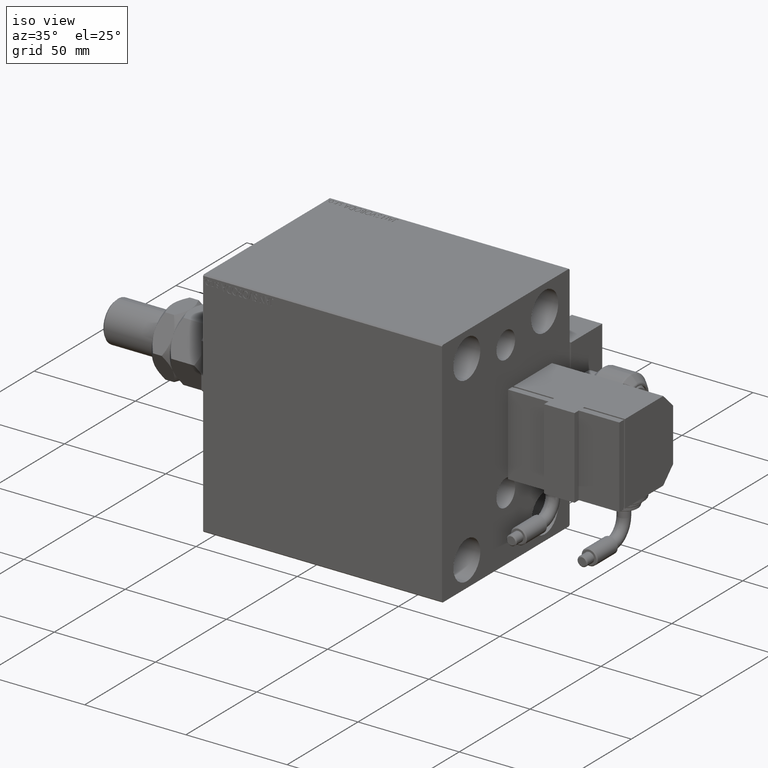
[diagram: clean part render]
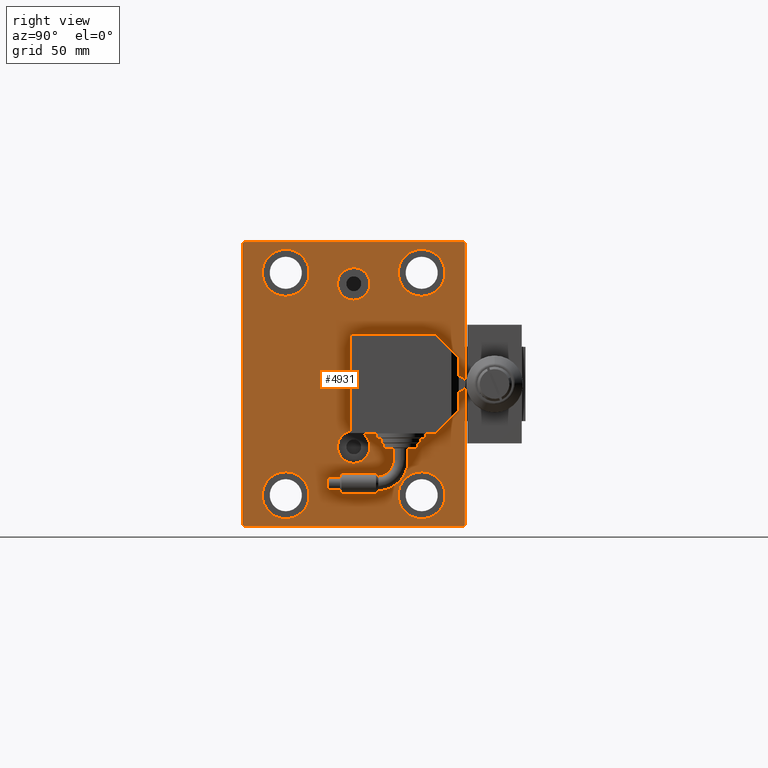
[diagram: tour spotlight — one face highlighted and labeled with its STEP entity id]
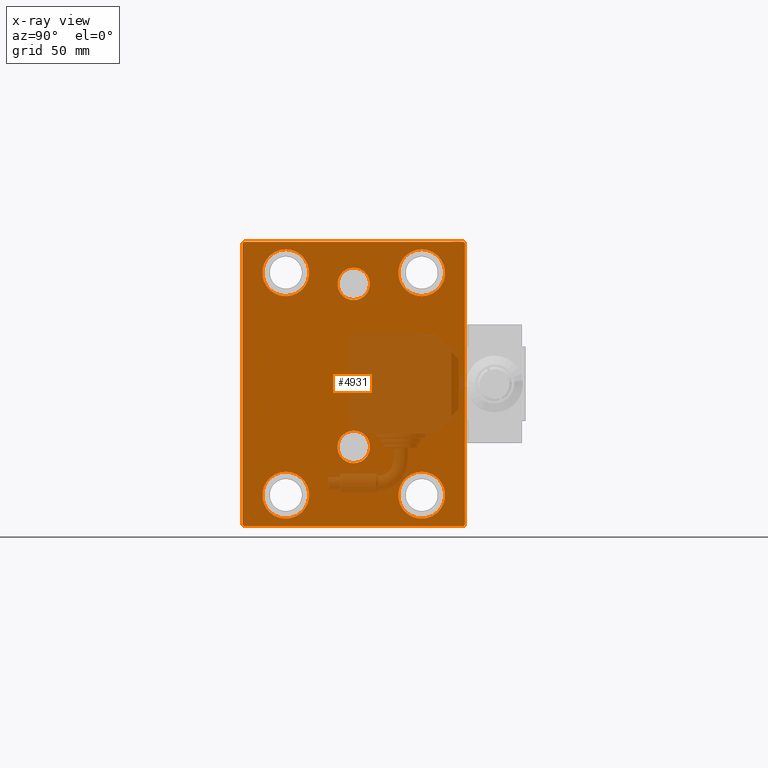
[diagram: x-ray of the same camera — body ghosted, this tour face saturated]
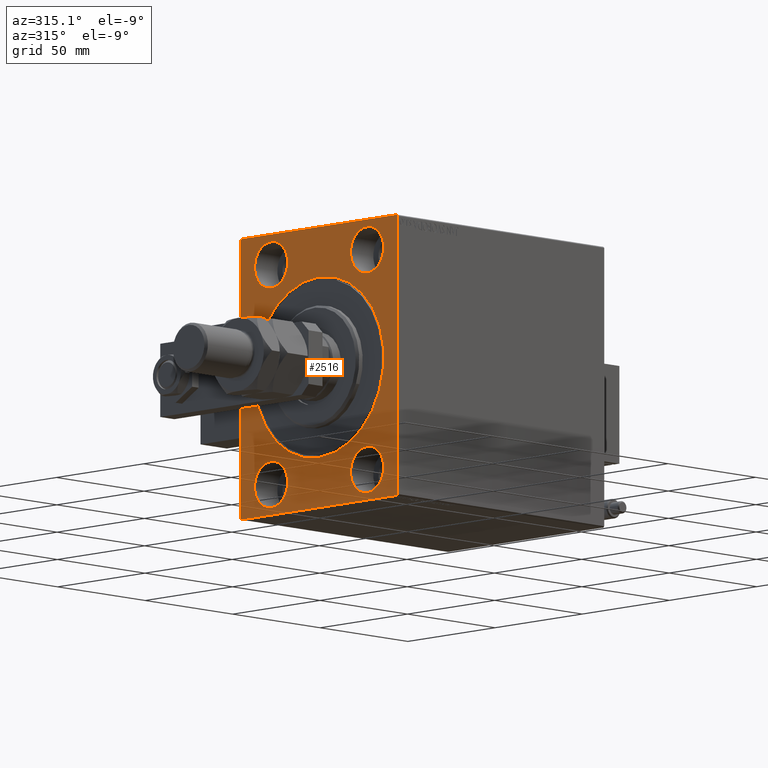
[diagram: tour spotlight — one face highlighted and labeled with its STEP entity id]
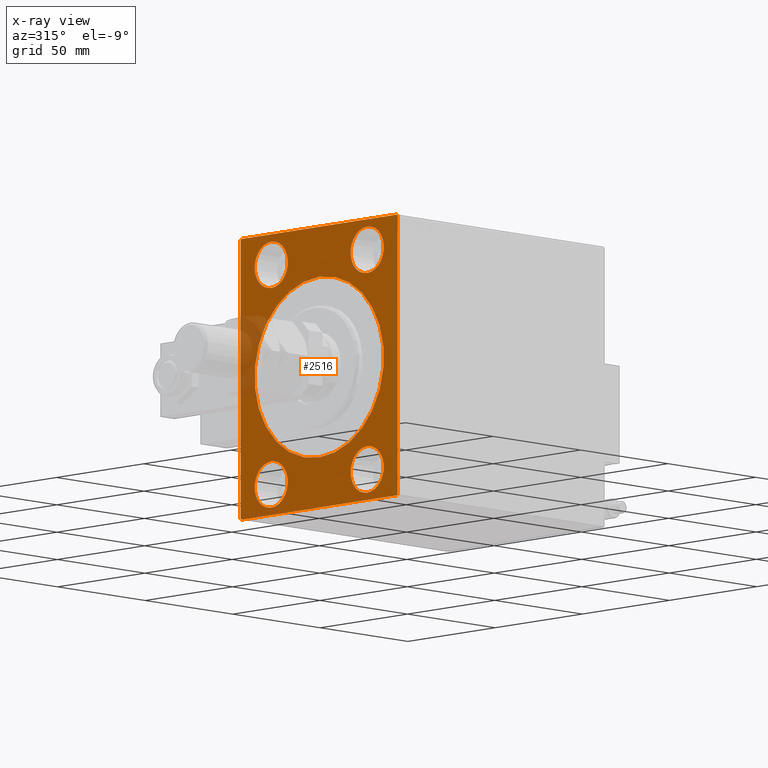
[diagram: x-ray of the same camera — body ghosted, this tour face saturated]
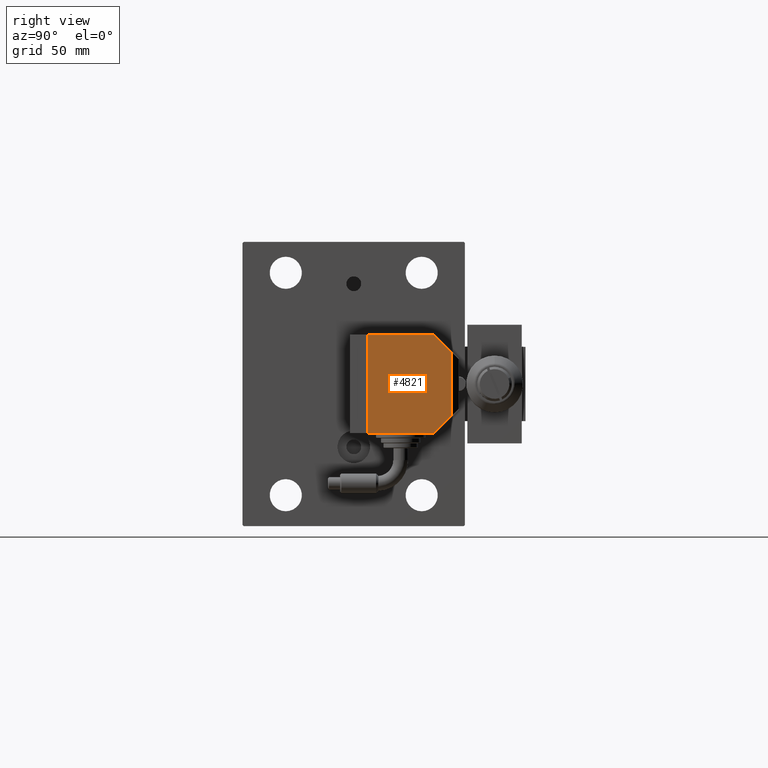
[diagram: tour spotlight — one face highlighted and labeled with its STEP entity id]
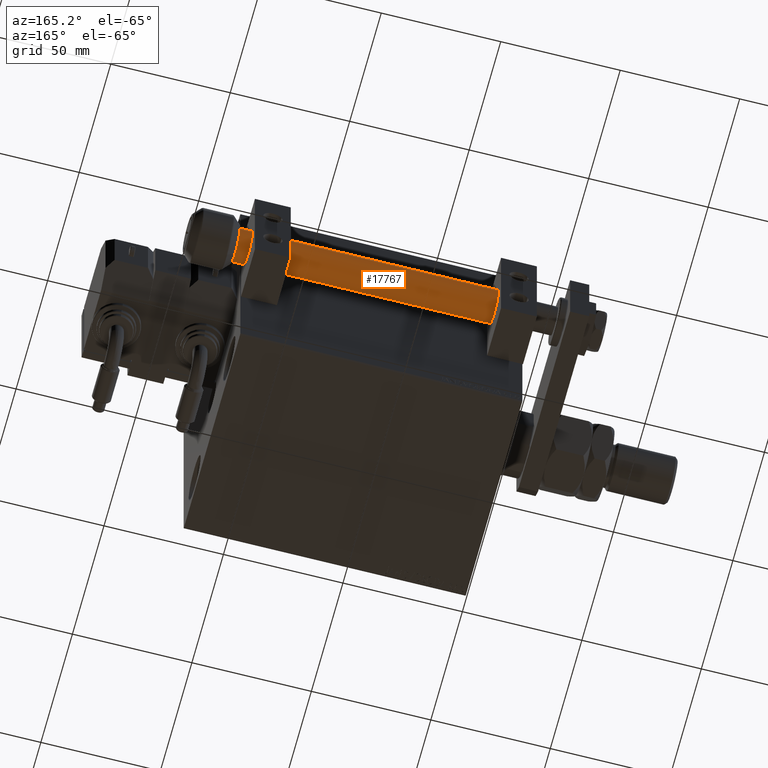
[diagram: tour spotlight — one face highlighted and labeled with its STEP entity id]
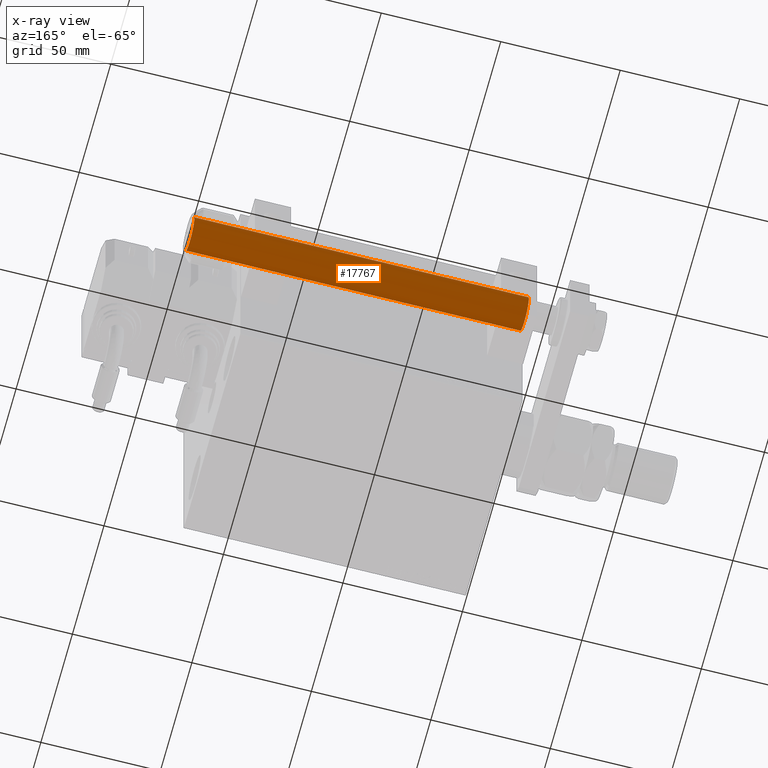
[diagram: x-ray of the same camera — body ghosted, this tour face saturated]
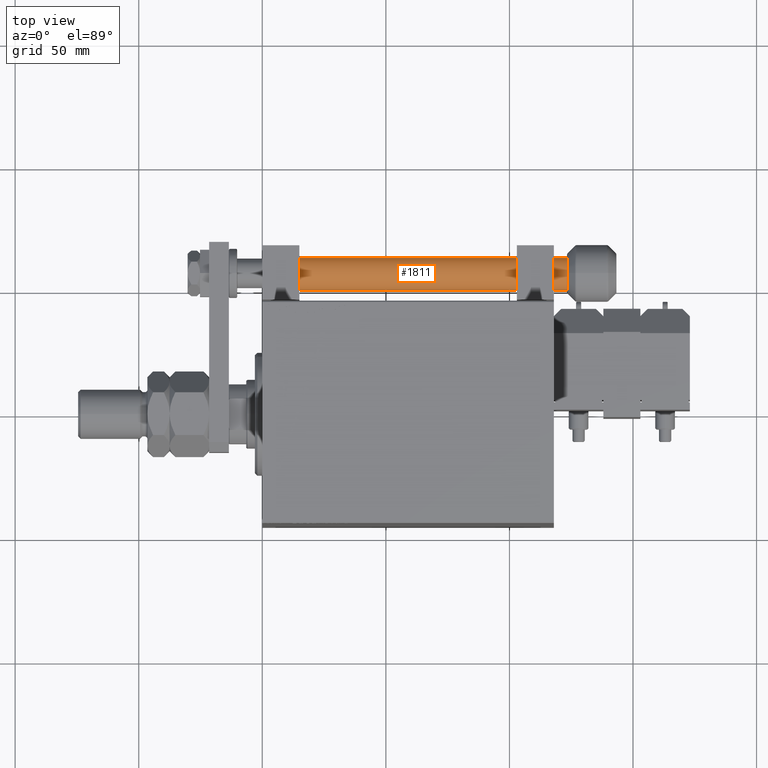
[diagram: tour spotlight — one face highlighted and labeled with its STEP entity id]
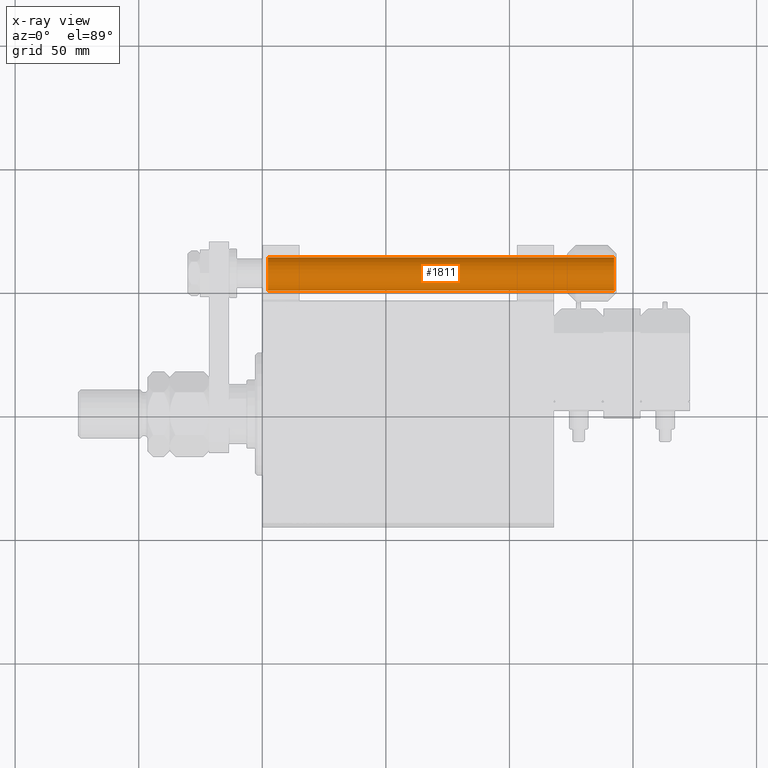
[diagram: x-ray of the same camera — body ghosted, this tour face saturated]
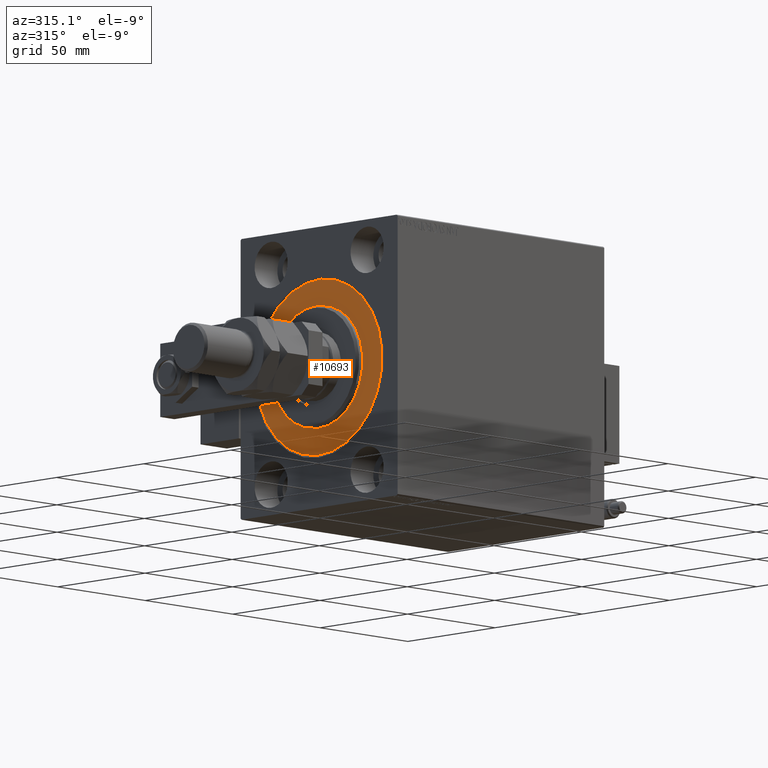
[diagram: tour spotlight — one face highlighted and labeled with its STEP entity id]
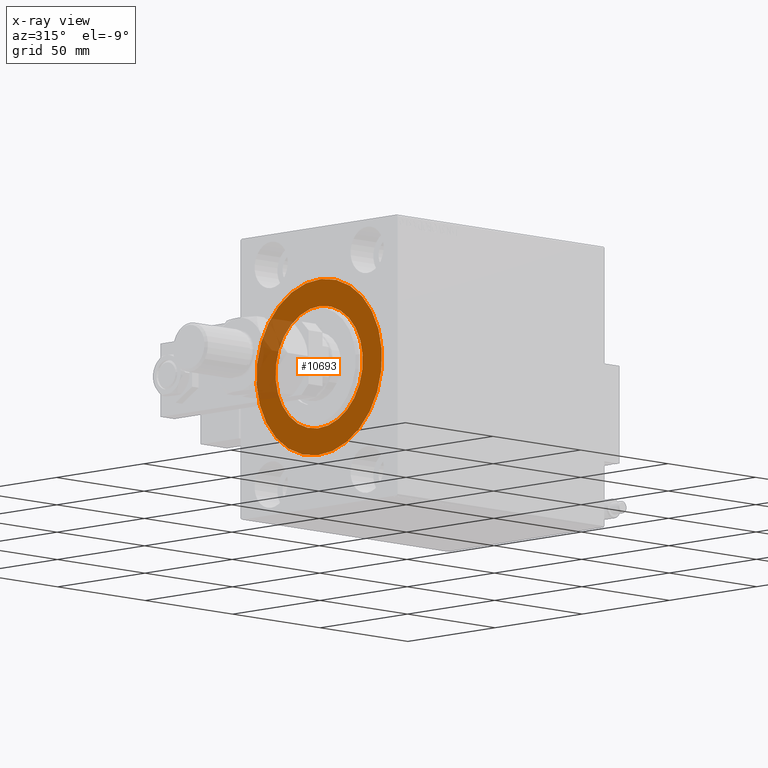
[diagram: x-ray of the same camera — body ghosted, this tour face saturated]
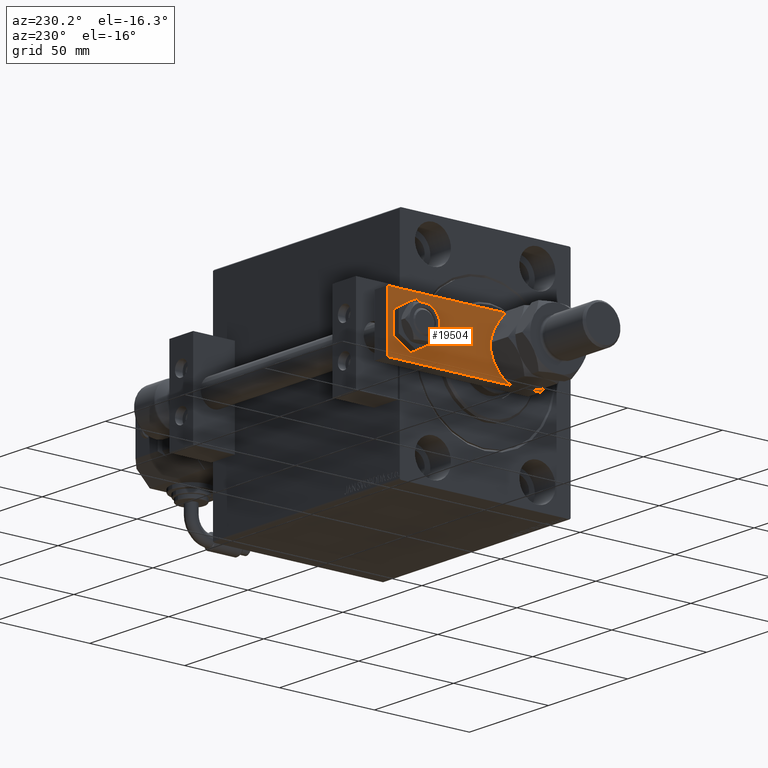
[diagram: tour spotlight — one face highlighted and labeled with its STEP entity id]
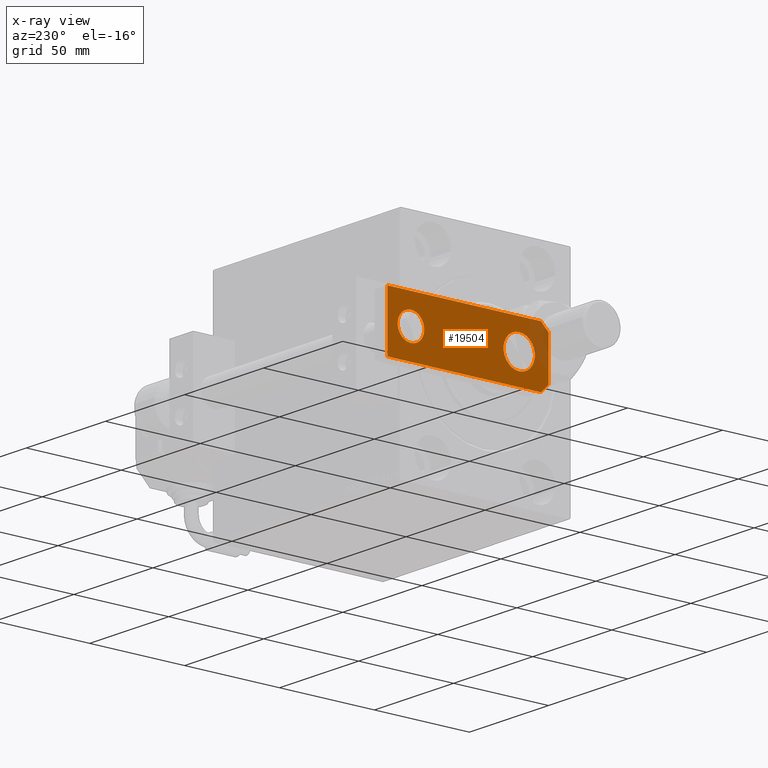
[diagram: x-ray of the same camera — body ghosted, this tour face saturated]
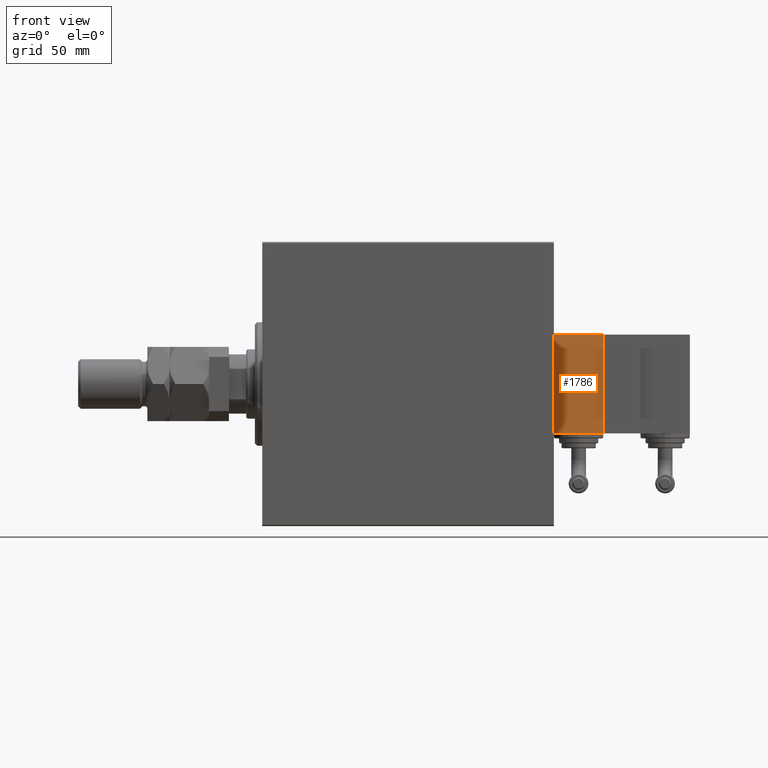
[diagram: tour spotlight — one face highlighted and labeled with its STEP entity id]
A machine part: a face-by-face anatomy tour. The part has 1162 B-rep faces; the first image is the clean iso view, then the 8 largest visible faces are spotlighted one at a time (largest first), each with its STEP entity span.

Face 1 — right view, entity #4931. An x-ray twin of the same camera follows (body ghosted, this face saturated) — the face is partly hidden behind the body. In plain terms, the highlighted planar face has unit normal (1, 0, 0).
Definition (entity closure, byte-faithful):
#296 = VERTEX_POINT ( 'NONE', #23370 ) ;
#339 = EDGE_LOOP ( 'NONE', ( #27978, #35543 ) ) ;
#350 = CIRCLE ( 'NONE', #2912, 6.580000000000002736 ) ;
#661 = EDGE_LOOP ( 'NONE', ( #26165, #33335 ) ) ;
#983 = CARTESIAN_POINT ( 'NONE',  ( 118.0000000000000000, -4.500599556835684736E-15, 47.08000000000001251 ) ) ;
#992 = AXIS2_PLACEMENT_3D ( 'NONE', #50108, #25902, #6208 ) ;
#2912 = AXIS2_PLACEMENT_3D ( 'NONE', #23896, #18879, #3431 ) ;
#3326 = ORIENTED_EDGE ( 'NONE', *, *, #24913, .T. ) ;
#3431 = DIRECTION ( 'NONE',  ( 0.000000000000000000, 0.000000000000000000, -1.000000000000000000 ) ) ;
#3561 = CARTESIAN_POINT ( 'NONE',  ( 118.0000000000000000, 44.50000000000001421, -57.50000000000000711 ) ) ;
#3839 = LINE ( 'NONE', #20052, #15381 ) ;
#4210 = FACE_BOUND ( 'NONE', #661, .T. ) ;
#4617 = ORIENTED_EDGE ( 'NONE', *, *, #36374, .T. ) ;
#4931 = ADVANCED_FACE ( 'NONE', ( #20164, #43862, #36397, #4210, #40650, #15918, #32401 ), #52621, .T. ) ;
#5605 = EDGE_CURVE ( 'NONE', #32669, #28707, #36593, .T. ) ;
#5721 = CARTESIAN_POINT ( 'NONE',  ( 118.0000000000000000, -5.306417150674643778E-15, 33.92000000000000881 ) ) ;
#6208 = DIRECTION ( 'NONE',  ( 0.000000000000000000, 0.000000000000000000, 1.000000000000000000 ) ) ;
#6298 = CIRCLE ( 'NONE', #36898, 9.500000000000001776 ) ;
#6630 = DIRECTION ( 'NONE',  ( 0.000000000000000000, 0.000000000000000000, 1.000000000000000000 ) ) ;
#6681 = EDGE_CURVE ( 'NONE', #43983, #46727, #3839, .T. ) ;
#7281 = DIRECTION ( 'NONE',  ( 0.000000000000000000, 0.000000000000000000, 1.000000000000000000 ) ) ;
#8200 = CARTESIAN_POINT ( 'NONE',  ( 118.0000000000000000, 0.000000000000000000, 0.000000000000000000 ) ) ;
#8933 = CARTESIAN_POINT ( 'NONE',  ( 118.0000000000000000, 45.00000000000001421, -57.50000000000000711 ) ) ;
#9309 = ORIENTED_EDGE ( 'NONE', *, *, #29916, .T. ) ;
#9391 = DIRECTION ( 'NONE',  ( 0.000000000000000000, 0.000000000000000000, 1.000000000000000000 ) ) ;
#9412 = CARTESIAN_POINT ( 'NONE',  ( 118.0000000000000000, -45.00000000000000000, 56.99999999999999289 ) ) ;
#9533 = DIRECTION ( 'NONE',  ( 0.000000000000000000, 0.000000000000000000, 1.000000000000000000 ) ) ;
#9591 = DIRECTION ( 'NONE',  ( -1.000000000000000000, -0.000000000000000000, -0.000000000000000000 ) ) ;
#9633 = ORIENTED_EDGE ( 'NONE', *, *, #17664, .T. ) ;
#9743 = EDGE_CURVE ( 'NONE', #46727, #14523, #16102, .T. ) ;
#10825 = VERTEX_POINT ( 'NONE', #5721 ) ;
#11133 = DIRECTION ( 'NONE',  ( 1.000000000000000000, 0.000000000000000000, 0.000000000000000000 ) ) ;
#11471 = DIRECTION ( 'NONE',  ( 0.000000000000000000, -1.000000000000000000, -1.541976423090495387E-16 ) ) ;
#12080 = LINE ( 'NONE', #41353, #33376 ) ;
#12611 = VECTOR ( 'NONE', #40607, 1000.000000000000000 ) ;
#12615 = DIRECTION ( 'NONE',  ( -0.000000000000000000, -0.7071067811865671127, 0.7071067811865279218 ) ) ;
#12801 = EDGE_CURVE ( 'NONE', #48496, #48921, #46932, .T. ) ;
#12959 = EDGE_CURVE ( 'NONE', #40024, #44193, #26464, .T. ) ;
#14523 = VERTEX_POINT ( 'NONE', #16408 ) ;
#14605 = CARTESIAN_POINT ( 'NONE',  ( 118.0000000000000000, -27.50000000000000000, -44.99999999999998579 ) ) ;
#14679 = CARTESIAN_POINT ( 'NONE',  ( 118.0000000000000000, 27.49999999999998934, -54.49999999999998579 ) ) ;
#14720 = EDGE_CURVE ( 'NONE', #14523, #39593, #12080, .T. ) ;
#14753 = EDGE_LOOP ( 'NONE', ( #3326, #45215 ) ) ;
#14791 = CARTESIAN_POINT ( 'NONE',  ( 118.0000000000000000, -44.49999999999994316, 57.49999999999999289 ) ) ;
#15122 = CARTESIAN_POINT ( 'NONE',  ( 118.0000000000000000, -5.306417150674643778E-15, 40.50000000000000711 ) ) ;
#15133 = AXIS2_PLACEMENT_3D ( 'NONE', #36514, #48484, #7281 ) ;
#15224 = ORIENTED_EDGE ( 'NONE', *, *, #6681, .T. ) ;
#15381 = VECTOR ( 'NONE', #48001, 1000.000000000000000 ) ;
#15918 = FACE_BOUND ( 'NONE', #38051, .T. ) ;
#16102 = LINE ( 'NONE', #8933, #24858 ) ;
#16408 = CARTESIAN_POINT ( 'NONE',  ( 118.0000000000000000, 45.00000000000000000, 57.00000000000000711 ) ) ;
#16531 = CARTESIAN_POINT ( 'NONE',  ( 118.0000000000000000, -45.00000000000000000, 57.49999999999999289 ) ) ;
#16602 = CARTESIAN_POINT ( 'NONE',  ( 118.0000000000000000, -27.50000000000000000, -35.49999999999998579 ) ) ;
#17069 = AXIS2_PLACEMENT_3D ( 'NONE', #41579, #25877, #9391 ) ;
#17615 = AXIS2_PLACEMENT_3D ( 'NONE', #14605, #43061, #6630 ) ;
#17664 = EDGE_CURVE ( 'NONE', #49299, #39122, #52165, .T. ) ;
#18088 = ORIENTED_EDGE ( 'NONE', *, *, #23291, .T. ) ;
#18154 = VECTOR ( 'NONE', #36482, 1000.000000000000000 ) ;
#18258 = AXIS2_PLACEMENT_3D ( 'NONE', #38167, #33921, #22195 ) ;
#18367 = DIRECTION ( 'NONE',  ( -0.000000000000000000, 0.7071067811865474617, -0.7071067811865474617 ) ) ;
#18747 = DIRECTION ( 'NONE',  ( -1.000000000000000000, -0.000000000000000000, -0.000000000000000000 ) ) ;
#18879 = DIRECTION ( 'NONE',  ( 1.000000000000000000, 0.000000000000000000, 0.000000000000000000 ) ) ;
#18890 = CARTESIAN_POINT ( 'NONE',  ( 118.0000000000000000, -51.00000000000001421, -51.00000000000001421 ) ) ;
#19290 = EDGE_CURVE ( 'NONE', #48921, #48496, #41189, .T. ) ;
#19781 = DIRECTION ( 'NONE',  ( 0.000000000000000000, 0.000000000000000000, 1.000000000000000000 ) ) ;
#20052 = CARTESIAN_POINT ( 'NONE',  ( 118.0000000000000000, 51.00000000000125056, -50.99999999999842970 ) ) ;
#20094 = VERTEX_POINT ( 'NONE', #32067 ) ;
#20164 = FACE_BOUND ( 'NONE', #33691, .T. ) ;
#20644 = DIRECTION ( 'NONE',  ( 0.000000000000000000, 0.000000000000000000, 1.000000000000000000 ) ) ;
#20798 = CARTESIAN_POINT ( 'NONE',  ( 118.0000000000000000, -45.00000000000000000, -57.00000000000003553 ) ) ;
#22105 = EDGE_CURVE ( 'NONE', #10825, #41038, #350, .T. ) ;
#22183 = CARTESIAN_POINT ( 'NONE',  ( 118.0000000000000000, 3.122849337825749828E-15, -32.07999999999999829 ) ) ;
#22195 = DIRECTION ( 'NONE',  ( 0.000000000000000000, 0.000000000000000000, 1.000000000000000000 ) ) ;
#22357 = LINE ( 'NONE', #18890, #42858 ) ;
#22475 = EDGE_CURVE ( 'NONE', #28707, #32669, #6298, .T. ) ;
#23291 = EDGE_CURVE ( 'NONE', #28466, #296, #22357, .T. ) ;
#23370 = CARTESIAN_POINT ( 'NONE',  ( 118.0000000000000000, -44.50000000000002842, -57.50000000000000711 ) ) ;
#23794 = AXIS2_PLACEMENT_3D ( 'NONE', #15122, #11133, #34819 ) ;
#23814 = DIRECTION ( 'NONE',  ( 1.000000000000000000, 0.000000000000000000, -0.000000000000000000 ) ) ;
#23896 = CARTESIAN_POINT ( 'NONE',  ( 118.0000000000000000, -5.306417150674643778E-15, 40.50000000000000711 ) ) ;
#23911 = CIRCLE ( 'NONE', #992, 9.500000000000001776 ) ;
#24858 = VECTOR ( 'NONE', #25151, 1000.000000000000000 ) ;
#24913 = EDGE_CURVE ( 'NONE', #35836, #43690, #52267, .T. ) ;
#25151 = DIRECTION ( 'NONE',  ( 0.000000000000000000, -1.206764157201257045E-16, 1.000000000000000000 ) ) ;
#25550 = DIRECTION ( 'NONE',  ( 0.000000000000000000, 0.000000000000000000, 1.000000000000000000 ) ) ;
#25877 = DIRECTION ( 'NONE',  ( -1.000000000000000000, -0.000000000000000000, -0.000000000000000000 ) ) ;
#25902 = DIRECTION ( 'NONE',  ( -1.000000000000000000, -0.000000000000000000, -0.000000000000000000 ) ) ;
#26165 = ORIENTED_EDGE ( 'NONE', *, *, #22475, .T. ) ;
#26464 = LINE ( 'NONE', #26987, #47054 ) ;
#26987 = CARTESIAN_POINT ( 'NONE',  ( 118.0000000000000000, -50.99999999999874944, 51.00000000000158451 ) ) ;
#27162 = CARTESIAN_POINT ( 'NONE',  ( 118.0000000000000000, 3.928666931664708475E-15, -18.91999999999999105 ) ) ;
#27846 = ORIENTED_EDGE ( 'NONE', *, *, #42349, .T. ) ;
#27978 = ORIENTED_EDGE ( 'NONE', *, *, #12801, .F. ) ;
#28295 = EDGE_LOOP ( 'NONE', ( #43113, #50886 ) ) ;
#28466 = VERTEX_POINT ( 'NONE', #20798 ) ;
#28683 = DIRECTION ( 'NONE',  ( 1.000000000000000000, 0.000000000000000000, 0.000000000000000000 ) ) ;
#28707 = VERTEX_POINT ( 'NONE', #47633 ) ;
#28903 = EDGE_LOOP ( 'NONE', ( #27846, #36966, #29835, #18088, #4617, #15224, #37018, #51016 ) ) ;
#29835 = ORIENTED_EDGE ( 'NONE', *, *, #52417, .T. ) ;
#29870 = VECTOR ( 'NONE', #11471, 1000.000000000000000 ) ;
#29916 = EDGE_CURVE ( 'NONE', #39122, #49299, #32050, .T. ) ;
#31268 = CIRCLE ( 'NONE', #15133, 9.500000000000001776 ) ;
#31420 = CARTESIAN_POINT ( 'NONE',  ( 118.0000000000000000, 27.50000000000001066, 35.50000000000000711 ) ) ;
#31825 = CARTESIAN_POINT ( 'NONE',  ( 118.0000000000000000, 27.50000000000001066, 54.50000000000000711 ) ) ;
#32050 = CIRCLE ( 'NONE', #17615, 9.500000000000001776 ) ;
#32067 = CARTESIAN_POINT ( 'NONE',  ( 118.0000000000000000, 27.49999999999998934, -35.49999999999998579 ) ) ;
#32199 = CARTESIAN_POINT ( 'NONE',  ( 118.0000000000000000, 45.00000000000000000, 57.50000000000000711 ) ) ;
#32401 = FACE_OUTER_BOUND ( 'NONE', #28903, .T. ) ;
#32669 = VERTEX_POINT ( 'NONE', #39763 ) ;
#33020 = LINE ( 'NONE', #16531, #18154 ) ;
#33335 = ORIENTED_EDGE ( 'NONE', *, *, #5605, .T. ) ;
#33376 = VECTOR ( 'NONE', #12615, 1000.000000000000000 ) ;
#33691 = EDGE_LOOP ( 'NONE', ( #50231, #34134 ) ) ;
#33921 = DIRECTION ( 'NONE',  ( 1.000000000000000000, 0.000000000000000000, -0.000000000000000000 ) ) ;
#34134 = ORIENTED_EDGE ( 'NONE', *, *, #40718, .F. ) ;
#34271 = DIRECTION ( 'NONE',  ( -1.000000000000000000, -0.000000000000000000, -0.000000000000000000 ) ) ;
#34819 = DIRECTION ( 'NONE',  ( 0.000000000000000000, 0.000000000000000000, -1.000000000000000000 ) ) ;
#35543 = ORIENTED_EDGE ( 'NONE', *, *, #19290, .F. ) ;
#35565 = EDGE_CURVE ( 'NONE', #45604, #20094, #31268, .T. ) ;
#35836 = VERTEX_POINT ( 'NONE', #31420 ) ;
#36137 = DIRECTION ( 'NONE',  ( 0.000000000000000000, 0.000000000000000000, -1.000000000000000000 ) ) ;
#36355 = LINE ( 'NONE', #51804, #12611 ) ;
#36374 = EDGE_CURVE ( 'NONE', #296, #43983, #36355, .T. ) ;
#36397 = FACE_BOUND ( 'NONE', #28295, .T. ) ;
#36482 = DIRECTION ( 'NONE',  ( 0.000000000000000000, 0.000000000000000000, -1.000000000000000000 ) ) ;
#36514 = CARTESIAN_POINT ( 'NONE',  ( 118.0000000000000000, 27.49999999999998934, -44.99999999999998579 ) ) ;
#36593 = CIRCLE ( 'NONE', #44226, 9.500000000000001776 ) ;
#36855 = CARTESIAN_POINT ( 'NONE',  ( 118.0000000000000000, 3.122849337825749828E-15, -25.49999999999999645 ) ) ;
#36898 = AXIS2_PLACEMENT_3D ( 'NONE', #38518, #34271, #9533 ) ;
#36966 = ORIENTED_EDGE ( 'NONE', *, *, #12959, .T. ) ;
#37018 = ORIENTED_EDGE ( 'NONE', *, *, #9743, .T. ) ;
#38051 = EDGE_LOOP ( 'NONE', ( #9633, #9309 ) ) ;
#38167 = CARTESIAN_POINT ( 'NONE',  ( 118.0000000000000000, 3.122849337825749828E-15, -25.49999999999999645 ) ) ;
#38518 = CARTESIAN_POINT ( 'NONE',  ( 118.0000000000000000, -27.49999999999998934, 45.00000000000000711 ) ) ;
#39122 = VERTEX_POINT ( 'NONE', #16602 ) ;
#39593 = VERTEX_POINT ( 'NONE', #41551 ) ;
#39763 = CARTESIAN_POINT ( 'NONE',  ( 118.0000000000000000, -27.49999999999998934, 54.50000000000000711 ) ) ;
#39986 = CIRCLE ( 'NONE', #17069, 9.500000000000001776 ) ;
#40024 = VERTEX_POINT ( 'NONE', #14791 ) ;
#40256 = CARTESIAN_POINT ( 'NONE',  ( 118.0000000000000000, 27.50000000000001066, 45.00000000000000711 ) ) ;
#40607 = DIRECTION ( 'NONE',  ( 0.000000000000000000, 1.000000000000000000, 0.000000000000000000 ) ) ;
#40650 = FACE_BOUND ( 'NONE', #14753, .T. ) ;
#40718 = EDGE_CURVE ( 'NONE', #41038, #10825, #43332, .T. ) ;
#41038 = VERTEX_POINT ( 'NONE', #983 ) ;
#41189 = CIRCLE ( 'NONE', #18258, 6.580000000000002736 ) ;
#41265 = AXIS2_PLACEMENT_3D ( 'NONE', #40256, #9591, #25550 ) ;
#41353 = CARTESIAN_POINT ( 'NONE',  ( 118.0000000000000000, 50.99999999999877076, 51.00000000000159162 ) ) ;
#41551 = CARTESIAN_POINT ( 'NONE',  ( 118.0000000000000000, 44.50000000000000000, 57.50000000000000711 ) ) ;
#41579 = CARTESIAN_POINT ( 'NONE',  ( 118.0000000000000000, 27.49999999999998934, -44.99999999999998579 ) ) ;
#42128 = EDGE_CURVE ( 'NONE', #20094, #45604, #39986, .T. ) ;
#42349 = EDGE_CURVE ( 'NONE', #39593, #40024, #52424, .T. ) ;
#42858 = VECTOR ( 'NONE', #18367, 1000.000000000000114 ) ;
#43061 = DIRECTION ( 'NONE',  ( -1.000000000000000000, -0.000000000000000000, -0.000000000000000000 ) ) ;
#43113 = ORIENTED_EDGE ( 'NONE', *, *, #35565, .T. ) ;
#43332 = CIRCLE ( 'NONE', #23794, 6.580000000000002736 ) ;
#43690 = VERTEX_POINT ( 'NONE', #31825 ) ;
#43862 = FACE_BOUND ( 'NONE', #339, .T. ) ;
#43983 = VERTEX_POINT ( 'NONE', #3561 ) ;
#44189 = EDGE_CURVE ( 'NONE', #43690, #35836, #23911, .T. ) ;
#44193 = VERTEX_POINT ( 'NONE', #9412 ) ;
#44226 = AXIS2_PLACEMENT_3D ( 'NONE', #47223, #18747, #19781 ) ;
#44494 = AXIS2_PLACEMENT_3D ( 'NONE', #36855, #23814, #44830 ) ;
#44573 = CARTESIAN_POINT ( 'NONE',  ( 118.0000000000000000, 45.00000000000001421, -57.00000000000000711 ) ) ;
#44830 = DIRECTION ( 'NONE',  ( 0.000000000000000000, 0.000000000000000000, 1.000000000000000000 ) ) ;
#44860 = DIRECTION ( 'NONE',  ( -1.000000000000000000, -0.000000000000000000, -0.000000000000000000 ) ) ;
#45215 = ORIENTED_EDGE ( 'NONE', *, *, #44189, .T. ) ;
#45604 = VERTEX_POINT ( 'NONE', #14679 ) ;
#46252 = AXIS2_PLACEMENT_3D ( 'NONE', #48067, #44860, #20644 ) ;
#46727 = VERTEX_POINT ( 'NONE', #44573 ) ;
#46932 = CIRCLE ( 'NONE', #44494, 6.580000000000002736 ) ;
#47054 = VECTOR ( 'NONE', #51465, 1000.000000000000000 ) ;
#47223 = CARTESIAN_POINT ( 'NONE',  ( 118.0000000000000000, -27.49999999999998934, 45.00000000000000711 ) ) ;
#47633 = CARTESIAN_POINT ( 'NONE',  ( 118.0000000000000000, -27.49999999999998934, 35.50000000000000711 ) ) ;
#48001 = DIRECTION ( 'NONE',  ( -0.000000000000000000, 0.7071067811865279218, 0.7071067811865671127 ) ) ;
#48067 = CARTESIAN_POINT ( 'NONE',  ( 118.0000000000000000, -27.50000000000000000, -44.99999999999998579 ) ) ;
#48089 = CARTESIAN_POINT ( 'NONE',  ( 118.0000000000000000, -27.50000000000000000, -54.49999999999998579 ) ) ;
#48484 = DIRECTION ( 'NONE',  ( -1.000000000000000000, -0.000000000000000000, -0.000000000000000000 ) ) ;
#48496 = VERTEX_POINT ( 'NONE', #22183 ) ;
#48921 = VERTEX_POINT ( 'NONE', #27162 ) ;
#49299 = VERTEX_POINT ( 'NONE', #48089 ) ;
#50108 = CARTESIAN_POINT ( 'NONE',  ( 118.0000000000000000, 27.50000000000001066, 45.00000000000000711 ) ) ;
#50231 = ORIENTED_EDGE ( 'NONE', *, *, #22105, .F. ) ;
#50886 = ORIENTED_EDGE ( 'NONE', *, *, #42128, .T. ) ;
#51002 = AXIS2_PLACEMENT_3D ( 'NONE', #8200, #28683, #36137 ) ;
#51016 = ORIENTED_EDGE ( 'NONE', *, *, #14720, .T. ) ;
#51465 = DIRECTION ( 'NONE',  ( 0.000000000000000000, -0.7071067811865672237, -0.7071067811865279218 ) ) ;
#51804 = CARTESIAN_POINT ( 'NONE',  ( 118.0000000000000000, -45.00000000000000000, -57.50000000000000711 ) ) ;
#52165 = CIRCLE ( 'NONE', #46252, 9.500000000000001776 ) ;
#52267 = CIRCLE ( 'NONE', #41265, 9.500000000000001776 ) ;
#52417 = EDGE_CURVE ( 'NONE', #44193, #28466, #33020, .T. ) ;
#52424 = LINE ( 'NONE', #32199, #29870 ) ;
#52621 = PLANE ( 'NONE',  #51002 ) ;

Face 2 — auxiliary view, entity #2516. An x-ray twin of the same camera follows (body ghosted, this face saturated) — the face is partly hidden behind the body. In plain terms, the highlighted planar face has unit normal (1, 0, 0).
Definition (entity closure, byte-faithful):
#338 = EDGE_CURVE ( 'NONE', #37267, #3286, #52547, .T. ) ;
#490 = FACE_BOUND ( 'NONE', #9886, .T. ) ;
#1275 = VECTOR ( 'NONE', #4906, 1000.000000000000000 ) ;
#2513 = CIRCLE ( 'NONE', #47510, 9.500000000000001776 ) ;
#2516 = ADVANCED_FACE ( 'NONE', ( #32681, #490, #9015, #45714, #28433, #49438 ), #4492, .F. ) ;
#2715 = EDGE_CURVE ( 'NONE', #4548, #46964, #2513, .T. ) ;
#2865 = VERTEX_POINT ( 'NONE', #41867 ) ;
#3036 = CIRCLE ( 'NONE', #22548, 9.500000000000001776 ) ;
#3123 = ORIENTED_EDGE ( 'NONE', *, *, #10827, .F. ) ;
#3286 = VERTEX_POINT ( 'NONE', #29308 ) ;
#4492 = PLANE ( 'NONE',  #12684 ) ;
#4548 = VERTEX_POINT ( 'NONE', #22472 ) ;
#4906 = DIRECTION ( 'NONE',  ( 0.000000000000000000, -0.7071067811865279218, -0.7071067811865671127 ) ) ;
#5253 = CARTESIAN_POINT ( 'NONE',  ( 0.000000000000000000, 44.50000000000000000, 57.50000000000000711 ) ) ;
#5899 = EDGE_CURVE ( 'NONE', #35522, #30337, #25562, .T. ) ;
#5979 = LINE ( 'NONE', #21932, #29159 ) ;
#6350 = ORIENTED_EDGE ( 'NONE', *, *, #21731, .T. ) ;
#6463 = VERTEX_POINT ( 'NONE', #37937 ) ;
#6537 = CARTESIAN_POINT ( 'NONE',  ( 0.000000000000000000, -27.49999999999998934, 45.00000000000000711 ) ) ;
#6608 = ORIENTED_EDGE ( 'NONE', *, *, #28520, .T. ) ;
#6713 = CARTESIAN_POINT ( 'NONE',  ( 0.000000000000000000, -44.50000000000002842, -57.50000000000000711 ) ) ;
#7043 = VERTEX_POINT ( 'NONE', #43950 ) ;
#7338 = DIRECTION ( 'NONE',  ( 0.000000000000000000, 0.000000000000000000, 1.000000000000000000 ) ) ;
#7510 = EDGE_CURVE ( 'NONE', #48291, #7043, #30054, .T. ) ;
#7624 = CARTESIAN_POINT ( 'NONE',  ( 0.000000000000000000, 0.000000000000000000, 37.00000000000000711 ) ) ;
#7663 = DIRECTION ( 'NONE',  ( 1.000000000000000000, 0.000000000000000000, 0.000000000000000000 ) ) ;
#7769 = DIRECTION ( 'NONE',  ( 0.000000000000000000, 0.000000000000000000, 1.000000000000000000 ) ) ;
#8797 = CARTESIAN_POINT ( 'NONE',  ( 0.000000000000000000, 27.50000000000001066, 45.00000000000000711 ) ) ;
#9015 = FACE_BOUND ( 'NONE', #46453, .T. ) ;
#9245 = LINE ( 'NONE', #5253, #25273 ) ;
#9886 = EDGE_LOOP ( 'NONE', ( #51408, #28549 ) ) ;
#9925 = DIRECTION ( 'NONE',  ( -0.000000000000000000, -0.7071067811865474617, 0.7071067811865474617 ) ) ;
#10161 = VECTOR ( 'NONE', #30148, 1000.000000000000000 ) ;
#10522 = VECTOR ( 'NONE', #48972, 1000.000000000000000 ) ;
#10827 = EDGE_CURVE ( 'NONE', #40661, #2865, #5979, .T. ) ;
#10951 = ORIENTED_EDGE ( 'NONE', *, *, #30282, .F. ) ;
#10986 = DIRECTION ( 'NONE',  ( -1.000000000000000000, 0.000000000000000000, 0.000000000000000000 ) ) ;
#11301 = DIRECTION ( 'NONE',  ( 0.000000000000000000, 0.000000000000000000, 1.000000000000000000 ) ) ;
#12684 = AXIS2_PLACEMENT_3D ( 'NONE', #36942, #41197, #12995 ) ;
#12995 = DIRECTION ( 'NONE',  ( 0.000000000000000000, 0.000000000000000000, -1.000000000000000000 ) ) ;
#13658 = DIRECTION ( 'NONE',  ( -1.000000000000000000, 0.000000000000000000, 0.000000000000000000 ) ) ;
#14021 = DIRECTION ( 'NONE',  ( -1.000000000000000000, 0.000000000000000000, 0.000000000000000000 ) ) ;
#14168 = LINE ( 'NONE', #6713, #30292 ) ;
#15217 = VERTEX_POINT ( 'NONE', #7624 ) ;
#15236 = CARTESIAN_POINT ( 'NONE',  ( 0.000000000000000000, -27.49999999999998934, 45.00000000000000711 ) ) ;
#15821 = EDGE_LOOP ( 'NONE', ( #10951, #22915 ) ) ;
#16322 = DIRECTION ( 'NONE',  ( 0.000000000000000000, 0.000000000000000000, 1.000000000000000000 ) ) ;
#16379 = EDGE_CURVE ( 'NONE', #20008, #6463, #36471, .T. ) ;
#16438 = CARTESIAN_POINT ( 'NONE',  ( 0.000000000000000000, -27.49999999999998934, 54.50000000000000711 ) ) ;
#17864 = CARTESIAN_POINT ( 'NONE',  ( 0.000000000000000000, 0.000000000000000000, 0.000000000000000000 ) ) ;
#18631 = CARTESIAN_POINT ( 'NONE',  ( 0.000000000000000000, -27.50000000000000000, -35.49999999999998579 ) ) ;
#20008 = VERTEX_POINT ( 'NONE', #35033 ) ;
#20023 = ORIENTED_EDGE ( 'NONE', *, *, #50875, .F. ) ;
#20411 = CIRCLE ( 'NONE', #42536, 37.00000000000000711 ) ;
#20819 = EDGE_CURVE ( 'NONE', #3286, #37267, #3036, .T. ) ;
#21078 = VERTEX_POINT ( 'NONE', #16438 ) ;
#21341 = VECTOR ( 'NONE', #26864, 1000.000000000000000 ) ;
#21355 = ORIENTED_EDGE ( 'NONE', *, *, #7510, .F. ) ;
#21731 = EDGE_CURVE ( 'NONE', #20008, #7043, #30406, .T. ) ;
#21855 = DIRECTION ( 'NONE',  ( 1.000000000000000000, 0.000000000000000000, 0.000000000000000000 ) ) ;
#21932 = CARTESIAN_POINT ( 'NONE',  ( 0.000000000000000000, -45.00000000000000000, -57.50000000000000711 ) ) ;
#22253 = CARTESIAN_POINT ( 'NONE',  ( 0.000000000000000000, -27.50000000000000000, -44.99999999999998579 ) ) ;
#22340 = CARTESIAN_POINT ( 'NONE',  ( 0.000000000000000000, 45.00000000000001421, -57.50000000000000711 ) ) ;
#22472 = CARTESIAN_POINT ( 'NONE',  ( 0.000000000000000000, -27.50000000000000000, -54.49999999999998579 ) ) ;
#22548 = AXIS2_PLACEMENT_3D ( 'NONE', #8797, #28488, #28221 ) ;
#22915 = ORIENTED_EDGE ( 'NONE', *, *, #2715, .F. ) ;
#23433 = EDGE_LOOP ( 'NONE', ( #35153, #49156 ) ) ;
#23696 = CARTESIAN_POINT ( 'NONE',  ( 0.000000000000000000, -45.00000000000000000, 57.49999999999999289 ) ) ;
#24301 = EDGE_CURVE ( 'NONE', #43321, #2865, #37088, .T. ) ;
#25256 = CARTESIAN_POINT ( 'NONE',  ( 0.000000000000000000, 27.50000000000001066, 35.50000000000000711 ) ) ;
#25273 = VECTOR ( 'NONE', #42217, 1000.000000000000000 ) ;
#25562 = CIRCLE ( 'NONE', #27270, 9.500000000000001776 ) ;
#25750 = CIRCLE ( 'NONE', #52063, 9.500000000000001776 ) ;
#26113 = DIRECTION ( 'NONE',  ( 0.000000000000000000, 0.000000000000000000, -1.000000000000000000 ) ) ;
#26188 = CIRCLE ( 'NONE', #32123, 9.500000000000001776 ) ;
#26864 = DIRECTION ( 'NONE',  ( 0.000000000000000000, -1.206764157201257045E-16, 1.000000000000000000 ) ) ;
#27270 = AXIS2_PLACEMENT_3D ( 'NONE', #34928, #13658, #34411 ) ;
#28056 = CARTESIAN_POINT ( 'NONE',  ( 0.000000000000000000, 44.50000000000000000, 57.50000000000000711 ) ) ;
#28221 = DIRECTION ( 'NONE',  ( 0.000000000000000000, 0.000000000000000000, 1.000000000000000000 ) ) ;
#28433 = FACE_BOUND ( 'NONE', #15821, .T. ) ;
#28488 = DIRECTION ( 'NONE',  ( -1.000000000000000000, 0.000000000000000000, 0.000000000000000000 ) ) ;
#28520 = EDGE_CURVE ( 'NONE', #43682, #15217, #43045, .T. ) ;
#28549 = ORIENTED_EDGE ( 'NONE', *, *, #35313, .F. ) ;
#29159 = VECTOR ( 'NONE', #30701, 1000.000000000000000 ) ;
#29308 = CARTESIAN_POINT ( 'NONE',  ( 0.000000000000000000, 27.50000000000001066, 54.50000000000000711 ) ) ;
#29494 = ORIENTED_EDGE ( 'NONE', *, *, #32981, .F. ) ;
#29888 = ORIENTED_EDGE ( 'NONE', *, *, #24301, .T. ) ;
#29944 = VERTEX_POINT ( 'NONE', #47832 ) ;
#30054 = LINE ( 'NONE', #33777, #31593 ) ;
#30119 = EDGE_CURVE ( 'NONE', #48291, #35949, #9245, .T. ) ;
#30148 = DIRECTION ( 'NONE',  ( -0.000000000000000000, 0.7071067811865672237, 0.7071067811865279218 ) ) ;
#30282 = EDGE_CURVE ( 'NONE', #46964, #4548, #38883, .T. ) ;
#30292 = VECTOR ( 'NONE', #9925, 1000.000000000000114 ) ;
#30337 = VERTEX_POINT ( 'NONE', #35539 ) ;
#30406 = LINE ( 'NONE', #51409, #10161 ) ;
#30701 = DIRECTION ( 'NONE',  ( 0.000000000000000000, 1.000000000000000000, 0.000000000000000000 ) ) ;
#30750 = EDGE_CURVE ( 'NONE', #40661, #6463, #14168, .T. ) ;
#31055 = CARTESIAN_POINT ( 'NONE',  ( 0.000000000000000000, 4.531193156845207581E-15, -37.00000000000000711 ) ) ;
#31593 = VECTOR ( 'NONE', #50003, 1000.000000000000000 ) ;
#31606 = DIRECTION ( 'NONE',  ( 0.000000000000000000, 0.000000000000000000, -1.000000000000000000 ) ) ;
#32123 = AXIS2_PLACEMENT_3D ( 'NONE', #43778, #42992, #7338 ) ;
#32681 = FACE_BOUND ( 'NONE', #49166, .T. ) ;
#32981 = EDGE_CURVE ( 'NONE', #29944, #21078, #47331, .T. ) ;
#33509 = CARTESIAN_POINT ( 'NONE',  ( 0.000000000000000000, -44.50000000000002842, -57.50000000000000711 ) ) ;
#33777 = CARTESIAN_POINT ( 'NONE',  ( 0.000000000000000000, 45.00000000000000000, 57.50000000000000711 ) ) ;
#33855 = AXIS2_PLACEMENT_3D ( 'NONE', #36650, #49415, #48891 ) ;
#34132 = ORIENTED_EDGE ( 'NONE', *, *, #43309, .F. ) ;
#34411 = DIRECTION ( 'NONE',  ( 0.000000000000000000, 0.000000000000000000, 1.000000000000000000 ) ) ;
#34928 = CARTESIAN_POINT ( 'NONE',  ( 0.000000000000000000, 27.49999999999998934, -44.99999999999998579 ) ) ;
#35033 = CARTESIAN_POINT ( 'NONE',  ( 0.000000000000000000, -45.00000000000000000, 56.99999999999999289 ) ) ;
#35153 = ORIENTED_EDGE ( 'NONE', *, *, #20819, .F. ) ;
#35313 = EDGE_CURVE ( 'NONE', #30337, #35522, #26188, .T. ) ;
#35321 = DIRECTION ( 'NONE',  ( -1.000000000000000000, 0.000000000000000000, 0.000000000000000000 ) ) ;
#35453 = AXIS2_PLACEMENT_3D ( 'NONE', #15236, #10986, #7769 ) ;
#35522 = VERTEX_POINT ( 'NONE', #47450 ) ;
#35539 = CARTESIAN_POINT ( 'NONE',  ( 0.000000000000000000, 27.49999999999998934, -54.49999999999998579 ) ) ;
#35693 = ORIENTED_EDGE ( 'NONE', *, *, #16379, .F. ) ;
#35949 = VERTEX_POINT ( 'NONE', #40701 ) ;
#36471 = LINE ( 'NONE', #23696, #10522 ) ;
#36650 = CARTESIAN_POINT ( 'NONE',  ( 0.000000000000000000, 27.50000000000001066, 45.00000000000000711 ) ) ;
#36942 = CARTESIAN_POINT ( 'NONE',  ( 0.000000000000000000, 0.000000000000000000, 0.000000000000000000 ) ) ;
#37088 = LINE ( 'NONE', #44269, #1275 ) ;
#37267 = VERTEX_POINT ( 'NONE', #25256 ) ;
#37937 = CARTESIAN_POINT ( 'NONE',  ( 0.000000000000000000, -45.00000000000000000, -57.00000000000003553 ) ) ;
#38845 = CARTESIAN_POINT ( 'NONE',  ( 0.000000000000000000, 45.00000000000001421, -57.00000000000000711 ) ) ;
#38883 = CIRCLE ( 'NONE', #50755, 9.500000000000001776 ) ;
#39014 = DIRECTION ( 'NONE',  ( 0.000000000000000000, 0.000000000000000000, 1.000000000000000000 ) ) ;
#39311 = CARTESIAN_POINT ( 'NONE',  ( 0.000000000000000000, -27.50000000000000000, -44.99999999999998579 ) ) ;
#40661 = VERTEX_POINT ( 'NONE', #33509 ) ;
#40701 = CARTESIAN_POINT ( 'NONE',  ( 0.000000000000000000, 45.00000000000000000, 57.00000000000000711 ) ) ;
#41197 = DIRECTION ( 'NONE',  ( 1.000000000000000000, 0.000000000000000000, 0.000000000000000000 ) ) ;
#41867 = CARTESIAN_POINT ( 'NONE',  ( 0.000000000000000000, 44.50000000000001421, -57.50000000000000711 ) ) ;
#42072 = ORIENTED_EDGE ( 'NONE', *, *, #30750, .T. ) ;
#42217 = DIRECTION ( 'NONE',  ( -0.000000000000000000, 0.7071067811865671127, -0.7071067811865279218 ) ) ;
#42304 = LINE ( 'NONE', #22340, #21341 ) ;
#42536 = AXIS2_PLACEMENT_3D ( 'NONE', #44353, #7663, #31606 ) ;
#42992 = DIRECTION ( 'NONE',  ( -1.000000000000000000, 0.000000000000000000, 0.000000000000000000 ) ) ;
#43045 = CIRCLE ( 'NONE', #50719, 37.00000000000000711 ) ;
#43309 = EDGE_CURVE ( 'NONE', #43321, #35949, #42304, .T. ) ;
#43321 = VERTEX_POINT ( 'NONE', #38845 ) ;
#43682 = VERTEX_POINT ( 'NONE', #31055 ) ;
#43778 = CARTESIAN_POINT ( 'NONE',  ( 0.000000000000000000, 27.49999999999998934, -44.99999999999998579 ) ) ;
#43863 = EDGE_LOOP ( 'NONE', ( #35693, #6350, #21355, #49516, #34132, #29888, #3123, #42072 ) ) ;
#43950 = CARTESIAN_POINT ( 'NONE',  ( 0.000000000000000000, -44.49999999999994316, 57.49999999999999289 ) ) ;
#44269 = CARTESIAN_POINT ( 'NONE',  ( 0.000000000000000000, 45.00000000000001421, -57.00000000000000711 ) ) ;
#44353 = CARTESIAN_POINT ( 'NONE',  ( 0.000000000000000000, 0.000000000000000000, 0.000000000000000000 ) ) ;
#44792 = EDGE_CURVE ( 'NONE', #15217, #43682, #20411, .T. ) ;
#45714 = FACE_BOUND ( 'NONE', #23433, .T. ) ;
#46453 = EDGE_LOOP ( 'NONE', ( #20023, #29494 ) ) ;
#46964 = VERTEX_POINT ( 'NONE', #18631 ) ;
#46965 = DIRECTION ( 'NONE',  ( -1.000000000000000000, 0.000000000000000000, 0.000000000000000000 ) ) ;
#47331 = CIRCLE ( 'NONE', #35453, 9.500000000000001776 ) ;
#47450 = CARTESIAN_POINT ( 'NONE',  ( 0.000000000000000000, 27.49999999999998934, -35.49999999999998579 ) ) ;
#47510 = AXIS2_PLACEMENT_3D ( 'NONE', #39311, #35321, #16322 ) ;
#47832 = CARTESIAN_POINT ( 'NONE',  ( 0.000000000000000000, -27.49999999999998934, 35.50000000000000711 ) ) ;
#48291 = VERTEX_POINT ( 'NONE', #28056 ) ;
#48891 = DIRECTION ( 'NONE',  ( 0.000000000000000000, 0.000000000000000000, 1.000000000000000000 ) ) ;
#48972 = DIRECTION ( 'NONE',  ( 0.000000000000000000, 0.000000000000000000, -1.000000000000000000 ) ) ;
#49156 = ORIENTED_EDGE ( 'NONE', *, *, #338, .F. ) ;
#49166 = EDGE_LOOP ( 'NONE', ( #49449, #6608 ) ) ;
#49415 = DIRECTION ( 'NONE',  ( -1.000000000000000000, 0.000000000000000000, 0.000000000000000000 ) ) ;
#49438 = FACE_OUTER_BOUND ( 'NONE', #43863, .T. ) ;
#49449 = ORIENTED_EDGE ( 'NONE', *, *, #44792, .T. ) ;
#49516 = ORIENTED_EDGE ( 'NONE', *, *, #30119, .T. ) ;
#50003 = DIRECTION ( 'NONE',  ( 0.000000000000000000, -1.000000000000000000, -1.541976423090495387E-16 ) ) ;
#50719 = AXIS2_PLACEMENT_3D ( 'NONE', #17864, #21855, #26113 ) ;
#50755 = AXIS2_PLACEMENT_3D ( 'NONE', #22253, #14021, #39014 ) ;
#50875 = EDGE_CURVE ( 'NONE', #21078, #29944, #25750, .T. ) ;
#51408 = ORIENTED_EDGE ( 'NONE', *, *, #5899, .F. ) ;
#51409 = CARTESIAN_POINT ( 'NONE',  ( 0.000000000000000000, -45.00000000000000000, 56.99999999999999289 ) ) ;
#52063 = AXIS2_PLACEMENT_3D ( 'NONE', #6537, #46965, #11301 ) ;
#52547 = CIRCLE ( 'NONE', #33855, 9.500000000000001776 ) ;

Face 3 — right view, entity #4821. In plain terms, the highlighted planar face has unit normal (-1, 0, -0).
Definition (entity closure, byte-faithful):
#1234 = VERTEX_POINT ( 'NONE', #48969 ) ;
#1532 = ORIENTED_EDGE ( 'NONE', *, *, #14173, .F. ) ;
#2916 = PLANE ( 'NONE',  #9393 ) ;
#4821 = ADVANCED_FACE ( 'NONE', ( #10114 ), #2916, .F. ) ;
#6123 = DIRECTION ( 'NONE',  ( 1.000000000000000000, 0.000000000000000000, -0.000000000000000000 ) ) ;
#6170 = VECTOR ( 'NONE', #25900, 1000.000000000000114 ) ;
#6680 = CARTESIAN_POINT ( 'NONE',  ( -19.99999999999994316, -13.49999999999996092, -10.00000000000000000 ) ) ;
#8153 = VERTEX_POINT ( 'NONE', #37904 ) ;
#8338 = VERTEX_POINT ( 'NONE', #50008 ) ;
#8423 = VERTEX_POINT ( 'NONE', #31864 ) ;
#9393 = AXIS2_PLACEMENT_3D ( 'NONE', #30846, #47342, #6123 ) ;
#10099 = LINE ( 'NONE', #38559, #13870 ) ;
#10114 = FACE_OUTER_BOUND ( 'NONE', #17432, .T. ) ;
#10131 = DIRECTION ( 'NONE',  ( -0.7071067811865356934, -0.7071067811865593411, -0.000000000000000000 ) ) ;
#11517 = EDGE_CURVE ( 'NONE', #8338, #8423, #10099, .T. ) ;
#13304 = DIRECTION ( 'NONE',  ( 1.284980352575412699E-16, 1.000000000000000000, 0.000000000000000000 ) ) ;
#13594 = LINE ( 'NONE', #37805, #28394 ) ;
#13870 = VECTOR ( 'NONE', #13304, 1000.000000000000000 ) ;
#14173 = EDGE_CURVE ( 'NONE', #49619, #22095, #25512, .T. ) ;
#16063 = LINE ( 'NONE', #45062, #44163 ) ;
#16725 = VECTOR ( 'NONE', #20663, 1000.000000000000000 ) ;
#17250 = EDGE_CURVE ( 'NONE', #51924, #1234, #13594, .T. ) ;
#17432 = EDGE_LOOP ( 'NONE', ( #22258, #52644, #47613, #25626, #19667, #1532, #28921 ) ) ;
#18165 = CARTESIAN_POINT ( 'NONE',  ( 9.999999999999984013, 23.50000000000009592, -10.00000000000000000 ) ) ;
#19667 = ORIENTED_EDGE ( 'NONE', *, *, #37049, .F. ) ;
#20663 = DIRECTION ( 'NONE',  ( -1.284980352575421081E-16, -1.000000000000000000, -0.000000000000000000 ) ) ;
#22095 = VERTEX_POINT ( 'NONE', #47348 ) ;
#22258 = ORIENTED_EDGE ( 'NONE', *, *, #17250, .F. ) ;
#23681 = VECTOR ( 'NONE', #39904, 1000.000000000000000 ) ;
#24835 = DIRECTION ( 'NONE',  ( 1.000000000000000000, 0.000000000000000000, 0.000000000000000000 ) ) ;
#25512 = LINE ( 'NONE', #28973, #46140 ) ;
#25626 = ORIENTED_EDGE ( 'NONE', *, *, #11517, .F. ) ;
#25900 = DIRECTION ( 'NONE',  ( -0.7071067811865479058, 0.7071067811865470176, -0.000000000000000000 ) ) ;
#26894 = LINE ( 'NONE', #6680, #23681 ) ;
#28394 = VECTOR ( 'NONE', #10131, 1000.000000000000000 ) ;
#28921 = ORIENTED_EDGE ( 'NONE', *, *, #29245, .F. ) ;
#28973 = CARTESIAN_POINT ( 'NONE',  ( -19.99999999999994316, -13.49999999999996092, -10.00000000000000000 ) ) ;
#29245 = EDGE_CURVE ( 'NONE', #1234, #49619, #41687, .T. ) ;
#30154 = LINE ( 'NONE', #18165, #6170 ) ;
#30846 = CARTESIAN_POINT ( 'NONE',  ( 0.000000000000000000, 0.000000000000000000, -10.00000000000000000 ) ) ;
#31864 = CARTESIAN_POINT ( 'NONE',  ( 20.00000000000005684, 13.50000000000003730, -10.00000000000000000 ) ) ;
#37049 = EDGE_CURVE ( 'NONE', #22095, #8338, #26894, .T. ) ;
#37428 = CARTESIAN_POINT ( 'NONE',  ( -19.99999999999994316, -13.49999999999996092, -10.00000000000000000 ) ) ;
#37805 = CARTESIAN_POINT ( 'NONE',  ( -19.99999999999993960, 13.49999999999986500, -10.00000000000000000 ) ) ;
#37904 = CARTESIAN_POINT ( 'NONE',  ( 12.99999999999999112, 20.50000000000009592, -10.00000000000000000 ) ) ;
#38559 = CARTESIAN_POINT ( 'NONE',  ( 20.00000000000005329, -13.49999999999996092, -10.00000000000000000 ) ) ;
#39164 = EDGE_CURVE ( 'NONE', #51924, #8153, #16063, .T. ) ;
#39904 = DIRECTION ( 'NONE',  ( 1.000000000000000000, 0.000000000000000000, 0.000000000000000000 ) ) ;
#41687 = LINE ( 'NONE', #37428, #16725 ) ;
#44163 = VECTOR ( 'NONE', #24835, 1000.000000000000000 ) ;
#45062 = CARTESIAN_POINT ( 'NONE',  ( 0.000000000000000000, 20.50000000000009592, -10.00000000000000000 ) ) ;
#45200 = DIRECTION ( 'NONE',  ( -1.284980352575421081E-16, -1.000000000000000000, -0.000000000000000000 ) ) ;
#46140 = VECTOR ( 'NONE', #45200, 1000.000000000000000 ) ;
#47342 = DIRECTION ( 'NONE',  ( 0.000000000000000000, 0.000000000000000000, 1.000000000000000000 ) ) ;
#47348 = CARTESIAN_POINT ( 'NONE',  ( -19.99999999999994316, -13.49999999999996092, -10.00000000000000000 ) ) ;
#47613 = ORIENTED_EDGE ( 'NONE', *, *, #49867, .F. ) ;
#48969 = CARTESIAN_POINT ( 'NONE',  ( -19.99999999999993960, 13.49999999999986500, -10.00000000000000000 ) ) ;
#49619 = VERTEX_POINT ( 'NONE', #51207 ) ;
#49867 = EDGE_CURVE ( 'NONE', #8423, #8153, #30154, .T. ) ;
#50008 = CARTESIAN_POINT ( 'NONE',  ( 20.00000000000005329, -13.49999999999996092, -10.00000000000000000 ) ) ;
#50912 = CARTESIAN_POINT ( 'NONE',  ( -12.99999999999994138, 20.50000000000009592, -10.00000000000000000 ) ) ;
#51207 = CARTESIAN_POINT ( 'NONE',  ( -19.99999999999993960, 2.569960705150834076E-15, -9.999999999999996447 ) ) ;
#51924 = VERTEX_POINT ( 'NONE', #50912 ) ;
#52644 = ORIENTED_EDGE ( 'NONE', *, *, #39164, .T. ) ;

Face 4 — auxiliary view, entity #17767. An x-ray twin of the same camera follows (body ghosted, this face saturated) — the face is partly hidden behind the body. In plain terms, the highlighted cylindrical surface (edge-blend (fillet) strip) has radius 7 mm, axis along (-1, 0, 0).
Definition (entity closure, byte-faithful):
#12 = EDGE_LOOP ( 'NONE', ( #41195, #6242, #3695, #8066, #48351, #4666 ) ) ;
#287 = EDGE_CURVE ( 'NONE', #14842, #11919, #40625, .T. ) ;
#402 = EDGE_CURVE ( 'NONE', #36940, #14842, #4735, .T. ) ;
#1491 = FACE_OUTER_BOUND ( 'NONE', #12, .T. ) ;
#2575 = CARTESIAN_POINT ( 'NONE',  ( -7.000000000000000000, 0.000000000000000000, 2.000000000000029310 ) ) ;
#3413 = AXIS2_PLACEMENT_3D ( 'NONE', #43280, #46493, #39035 ) ;
#3695 = ORIENTED_EDGE ( 'NONE', *, *, #287, .T. ) ;
#4101 = VECTOR ( 'NONE', #21208, 1000.000000000000000 ) ;
#4143 = CIRCLE ( 'NONE', #46651, 7.000000000000000000 ) ;
#4666 = ORIENTED_EDGE ( 'NONE', *, *, #7854, .T. ) ;
#4735 = LINE ( 'NONE', #33189, #4101 ) ;
#5139 = CIRCLE ( 'NONE', #3413, 7.000000000000000000 ) ;
#5185 = EDGE_CURVE ( 'NONE', #15281, #17486, #5139, .T. ) ;
#6242 = ORIENTED_EDGE ( 'NONE', *, *, #402, .T. ) ;
#6899 = DIRECTION ( 'NONE',  ( -0.000000000000000000, -0.000000000000000000, 1.000000000000000000 ) ) ;
#7854 = EDGE_CURVE ( 'NONE', #17486, #16927, #12025, .T. ) ;
#8066 = ORIENTED_EDGE ( 'NONE', *, *, #28348, .F. ) ;
#10277 = DIRECTION ( 'NONE',  ( -0.000000000000000000, -0.000000000000000000, -1.000000000000000000 ) ) ;
#11919 = VERTEX_POINT ( 'NONE', #2575 ) ;
#12025 = CIRCLE ( 'NONE', #21369, 7.000000000000000000 ) ;
#13993 = DIRECTION ( 'NONE',  ( -0.000000000000000000, -0.000000000000000000, -1.000000000000000000 ) ) ;
#14842 = VERTEX_POINT ( 'NONE', #47693 ) ;
#15281 = VERTEX_POINT ( 'NONE', #43668 ) ;
#15573 = DIRECTION ( 'NONE',  ( 1.000000000000000000, 0.000000000000000000, 0.000000000000000000 ) ) ;
#15604 = CARTESIAN_POINT ( 'NONE',  ( 0.5000000000000000000, 6.982120021884470340, 142.0000000000000000 ) ) ;
#16546 = CARTESIAN_POINT ( 'NONE',  ( 0.000000000000000000, 0.000000000000000000, 142.0000000000000000 ) ) ;
#16927 = VERTEX_POINT ( 'NONE', #15604 ) ;
#17486 = VERTEX_POINT ( 'NONE', #44923 ) ;
#17767 = ADVANCED_FACE ( 'NONE', ( #1491 ), #39255, .T. ) ;
#17860 = CARTESIAN_POINT ( 'NONE',  ( 7.000000000000000000, 8.572527594031473190E-16, 142.0000000000000000 ) ) ;
#21208 = DIRECTION ( 'NONE',  ( -0.000000000000000000, -0.000000000000000000, -1.000000000000000000 ) ) ;
#21369 = AXIS2_PLACEMENT_3D ( 'NONE', #39278, #27557, #15573 ) ;
#23114 = CARTESIAN_POINT ( 'NONE',  ( 0.000000000000000000, 0.000000000000000000, 2.000000000000029310 ) ) ;
#25981 = LINE ( 'NONE', #30751, #33712 ) ;
#26230 = DIRECTION ( 'NONE',  ( -1.000000000000000000, 0.000000000000000000, 0.000000000000000000 ) ) ;
#27557 = DIRECTION ( 'NONE',  ( 0.000000000000000000, 0.000000000000000000, -1.000000000000000000 ) ) ;
#28348 = EDGE_CURVE ( 'NONE', #15281, #11919, #25981, .T. ) ;
#28787 = DIRECTION ( 'NONE',  ( 1.000000000000000000, -8.881784197001252323E-16, 0.000000000000000000 ) ) ;
#30751 = CARTESIAN_POINT ( 'NONE',  ( -7.000000000000000000, 0.000000000000000000, 143.0000000000000000 ) ) ;
#32772 = DIRECTION ( 'NONE',  ( 0.000000000000000000, 0.000000000000000000, -1.000000000000000000 ) ) ;
#33189 = CARTESIAN_POINT ( 'NONE',  ( 7.000000000000000000, 8.572527594031473190E-16, 143.0000000000000000 ) ) ;
#33712 = VECTOR ( 'NONE', #10277, 1000.000000000000000 ) ;
#36867 = EDGE_CURVE ( 'NONE', #16927, #36940, #4143, .T. ) ;
#36940 = VERTEX_POINT ( 'NONE', #17860 ) ;
#39035 = DIRECTION ( 'NONE',  ( 1.000000000000000000, 0.000000000000000000, 0.000000000000000000 ) ) ;
#39255 = CYLINDRICAL_SURFACE ( 'NONE', #47951, 7.000000000000000000 ) ;
#39278 = CARTESIAN_POINT ( 'NONE',  ( 0.000000000000000000, 0.000000000000000000, 142.0000000000000000 ) ) ;
#40625 = CIRCLE ( 'NONE', #50858, 7.000000000000000000 ) ;
#41195 = ORIENTED_EDGE ( 'NONE', *, *, #36867, .T. ) ;
#43280 = CARTESIAN_POINT ( 'NONE',  ( 0.000000000000000000, 0.000000000000000000, 142.0000000000000000 ) ) ;
#43668 = CARTESIAN_POINT ( 'NONE',  ( -7.000000000000000000, 0.000000000000000000, 142.0000000000000000 ) ) ;
#44923 = CARTESIAN_POINT ( 'NONE',  ( -0.4999999999999992784, 6.982120021884471228, 142.0000000000000000 ) ) ;
#46493 = DIRECTION ( 'NONE',  ( 0.000000000000000000, 0.000000000000000000, -1.000000000000000000 ) ) ;
#46651 = AXIS2_PLACEMENT_3D ( 'NONE', #16546, #32772, #28787 ) ;
#46969 = CARTESIAN_POINT ( 'NONE',  ( 0.000000000000000000, 0.000000000000000000, 143.0000000000000000 ) ) ;
#47693 = CARTESIAN_POINT ( 'NONE',  ( 7.000000000000000000, 8.572527594031473190E-16, 2.000000000000029310 ) ) ;
#47951 = AXIS2_PLACEMENT_3D ( 'NONE', #46969, #13993, #26230 ) ;
#48351 = ORIENTED_EDGE ( 'NONE', *, *, #5185, .T. ) ;
#50858 = AXIS2_PLACEMENT_3D ( 'NONE', #23114, #6899, #52356 ) ;
#52356 = DIRECTION ( 'NONE',  ( 1.000000000000000000, 0.000000000000000000, 0.000000000000000000 ) ) ;

Face 5 — top view, entity #1811. An x-ray twin of the same camera follows (body ghosted, this face saturated) — the face is partly hidden behind the body. In plain terms, the highlighted cylindrical surface (edge-blend (fillet) strip) has radius 7 mm, axis along (-1, 0, 0).
Definition (entity closure, byte-faithful):
#402 = EDGE_CURVE ( 'NONE', #36940, #14842, #4735, .T. ) ;
#1811 = ADVANCED_FACE ( 'NONE', ( #40531 ), #3557, .T. ) ;
#2207 = CIRCLE ( 'NONE', #37021, 7.000000000000000000 ) ;
#2409 = EDGE_CURVE ( 'NONE', #46711, #15281, #48364, .T. ) ;
#2575 = CARTESIAN_POINT ( 'NONE',  ( -7.000000000000000000, 0.000000000000000000, 2.000000000000029310 ) ) ;
#3557 = CYLINDRICAL_SURFACE ( 'NONE', #27944, 7.000000000000000000 ) ;
#3572 = CARTESIAN_POINT ( 'NONE',  ( 0.000000000000000000, 0.000000000000000000, 142.0000000000000000 ) ) ;
#4101 = VECTOR ( 'NONE', #21208, 1000.000000000000000 ) ;
#4735 = LINE ( 'NONE', #33189, #4101 ) ;
#4939 = EDGE_CURVE ( 'NONE', #30382, #46711, #11904, .T. ) ;
#7693 = DIRECTION ( 'NONE',  ( 1.000000000000000000, 0.000000000000000000, 0.000000000000000000 ) ) ;
#8121 = CARTESIAN_POINT ( 'NONE',  ( 0.5000000000000001110, -6.982120021884471228, 142.0000000000000000 ) ) ;
#8340 = DIRECTION ( 'NONE',  ( -1.000000000000000000, 0.000000000000000000, 0.000000000000000000 ) ) ;
#8953 = AXIS2_PLACEMENT_3D ( 'NONE', #3572, #10796, #15811 ) ;
#10277 = DIRECTION ( 'NONE',  ( -0.000000000000000000, -0.000000000000000000, -1.000000000000000000 ) ) ;
#10796 = DIRECTION ( 'NONE',  ( 0.000000000000000000, 0.000000000000000000, -1.000000000000000000 ) ) ;
#11167 = DIRECTION ( 'NONE',  ( 0.000000000000000000, 0.000000000000000000, -1.000000000000000000 ) ) ;
#11679 = EDGE_LOOP ( 'NONE', ( #45165, #12610, #28763, #24422, #29306, #41191 ) ) ;
#11782 = DIRECTION ( 'NONE',  ( 1.000000000000000000, 0.000000000000000000, 0.000000000000000000 ) ) ;
#11904 = CIRCLE ( 'NONE', #51838, 7.000000000000000000 ) ;
#11919 = VERTEX_POINT ( 'NONE', #2575 ) ;
#12329 = CARTESIAN_POINT ( 'NONE',  ( 0.000000000000000000, 0.000000000000000000, 143.0000000000000000 ) ) ;
#12610 = ORIENTED_EDGE ( 'NONE', *, *, #24293, .T. ) ;
#14842 = VERTEX_POINT ( 'NONE', #47693 ) ;
#14878 = CIRCLE ( 'NONE', #8953, 7.000000000000000000 ) ;
#15281 = VERTEX_POINT ( 'NONE', #43668 ) ;
#15811 = DIRECTION ( 'NONE',  ( 1.000000000000000000, 0.000000000000000000, 0.000000000000000000 ) ) ;
#17771 = AXIS2_PLACEMENT_3D ( 'NONE', #31381, #11167, #7693 ) ;
#17860 = CARTESIAN_POINT ( 'NONE',  ( 7.000000000000000000, 8.572527594031473190E-16, 142.0000000000000000 ) ) ;
#20342 = EDGE_CURVE ( 'NONE', #11919, #14842, #2207, .T. ) ;
#20423 = DIRECTION ( 'NONE',  ( 1.000000000000000000, 0.000000000000000000, 0.000000000000000000 ) ) ;
#21208 = DIRECTION ( 'NONE',  ( -0.000000000000000000, -0.000000000000000000, -1.000000000000000000 ) ) ;
#24293 = EDGE_CURVE ( 'NONE', #36940, #30382, #14878, .T. ) ;
#24422 = ORIENTED_EDGE ( 'NONE', *, *, #2409, .T. ) ;
#24612 = CARTESIAN_POINT ( 'NONE',  ( -0.4999999999999975020, -6.982120021884471228, 142.0000000000000000 ) ) ;
#25981 = LINE ( 'NONE', #30751, #33712 ) ;
#27944 = AXIS2_PLACEMENT_3D ( 'NONE', #12329, #28298, #8340 ) ;
#28298 = DIRECTION ( 'NONE',  ( -0.000000000000000000, -0.000000000000000000, -1.000000000000000000 ) ) ;
#28348 = EDGE_CURVE ( 'NONE', #15281, #11919, #25981, .T. ) ;
#28763 = ORIENTED_EDGE ( 'NONE', *, *, #4939, .T. ) ;
#29306 = ORIENTED_EDGE ( 'NONE', *, *, #28348, .T. ) ;
#30382 = VERTEX_POINT ( 'NONE', #8121 ) ;
#30751 = CARTESIAN_POINT ( 'NONE',  ( -7.000000000000000000, 0.000000000000000000, 143.0000000000000000 ) ) ;
#31381 = CARTESIAN_POINT ( 'NONE',  ( 0.000000000000000000, 0.000000000000000000, 142.0000000000000000 ) ) ;
#32138 = CARTESIAN_POINT ( 'NONE',  ( 0.000000000000000000, 0.000000000000000000, 142.0000000000000000 ) ) ;
#33189 = CARTESIAN_POINT ( 'NONE',  ( 7.000000000000000000, 8.572527594031473190E-16, 143.0000000000000000 ) ) ;
#33712 = VECTOR ( 'NONE', #10277, 1000.000000000000000 ) ;
#36940 = VERTEX_POINT ( 'NONE', #17860 ) ;
#37021 = AXIS2_PLACEMENT_3D ( 'NONE', #51462, #39741, #11782 ) ;
#39741 = DIRECTION ( 'NONE',  ( -0.000000000000000000, -0.000000000000000000, 1.000000000000000000 ) ) ;
#39870 = DIRECTION ( 'NONE',  ( 0.000000000000000000, 0.000000000000000000, -1.000000000000000000 ) ) ;
#40531 = FACE_OUTER_BOUND ( 'NONE', #11679, .T. ) ;
#41191 = ORIENTED_EDGE ( 'NONE', *, *, #20342, .T. ) ;
#43668 = CARTESIAN_POINT ( 'NONE',  ( -7.000000000000000000, 0.000000000000000000, 142.0000000000000000 ) ) ;
#45165 = ORIENTED_EDGE ( 'NONE', *, *, #402, .F. ) ;
#46711 = VERTEX_POINT ( 'NONE', #24612 ) ;
#47693 = CARTESIAN_POINT ( 'NONE',  ( 7.000000000000000000, 8.572527594031473190E-16, 2.000000000000029310 ) ) ;
#48364 = CIRCLE ( 'NONE', #17771, 7.000000000000000000 ) ;
#51462 = CARTESIAN_POINT ( 'NONE',  ( 0.000000000000000000, 0.000000000000000000, 2.000000000000029310 ) ) ;
#51838 = AXIS2_PLACEMENT_3D ( 'NONE', #32138, #39870, #20423 ) ;

Face 6 — auxiliary view, entity #10693. An x-ray twin of the same camera follows (body ghosted, this face saturated) — the face is partly hidden behind the body. In plain terms, the highlighted planar face has unit normal (1, 0, -0).
Definition (entity closure, byte-faithful):
#620 = VERTEX_POINT ( 'NONE', #2586 ) ;
#2586 = CARTESIAN_POINT ( 'NONE',  ( 0.000000000000000000, 0.000000000000000000, 25.00000000000000000 ) ) ;
#3977 = VERTEX_POINT ( 'NONE', #22762 ) ;
#5007 = CARTESIAN_POINT ( 'NONE',  ( 0.000000000000000000, 0.000000000000000000, 0.000000000000000000 ) ) ;
#8475 = EDGE_LOOP ( 'NONE', ( #17925, #23082 ) ) ;
#9652 = AXIS2_PLACEMENT_3D ( 'NONE', #5007, #49956, #13504 ) ;
#10378 = VERTEX_POINT ( 'NONE', #44157 ) ;
#10381 = EDGE_LOOP ( 'NONE', ( #26421, #19005 ) ) ;
#10693 = ADVANCED_FACE ( 'NONE', ( #22586, #51315 ), #32049, .F. ) ;
#11386 = VERTEX_POINT ( 'NONE', #24465 ) ;
#12408 = DIRECTION ( 'NONE',  ( 0.000000000000000000, 0.000000000000000000, 1.000000000000000000 ) ) ;
#12846 = CARTESIAN_POINT ( 'NONE',  ( 0.000000000000000000, 0.000000000000000000, 0.000000000000000000 ) ) ;
#12938 = DIRECTION ( 'NONE',  ( -1.000000000000000000, 0.000000000000000000, 0.000000000000000000 ) ) ;
#13504 = DIRECTION ( 'NONE',  ( 0.000000000000000000, 0.000000000000000000, 1.000000000000000000 ) ) ;
#14294 = CIRCLE ( 'NONE', #34698, 25.00000000000000000 ) ;
#15449 = DIRECTION ( 'NONE',  ( 1.000000000000000000, -0.000000000000000000, 0.000000000000000000 ) ) ;
#15633 = AXIS2_PLACEMENT_3D ( 'NONE', #12846, #45833, #25615 ) ;
#15958 = EDGE_CURVE ( 'NONE', #3977, #10378, #24043, .T. ) ;
#17925 = ORIENTED_EDGE ( 'NONE', *, *, #17957, .F. ) ;
#17957 = EDGE_CURVE ( 'NONE', #620, #11386, #25867, .T. ) ;
#18583 = AXIS2_PLACEMENT_3D ( 'NONE', #41934, #12938, #12408 ) ;
#18847 = CARTESIAN_POINT ( 'NONE',  ( 0.000000000000000000, 0.000000000000000000, 0.000000000000000000 ) ) ;
#19005 = ORIENTED_EDGE ( 'NONE', *, *, #15958, .F. ) ;
#21116 = CIRCLE ( 'NONE', #18583, 36.00000000000000000 ) ;
#22313 = DIRECTION ( 'NONE',  ( -1.000000000000000000, 0.000000000000000000, 0.000000000000000000 ) ) ;
#22586 = FACE_BOUND ( 'NONE', #8475, .T. ) ;
#22762 = CARTESIAN_POINT ( 'NONE',  ( 0.000000000000000000, 4.408728476930470856E-15, 36.00000000000000000 ) ) ;
#23082 = ORIENTED_EDGE ( 'NONE', *, *, #34953, .F. ) ;
#23425 = CARTESIAN_POINT ( 'NONE',  ( 0.000000000000000000, 0.000000000000000000, 0.000000000000000000 ) ) ;
#24043 = CIRCLE ( 'NONE', #9652, 36.00000000000000000 ) ;
#24465 = CARTESIAN_POINT ( 'NONE',  ( 0.000000000000000000, 3.061616997868383043E-15, -25.00000000000000000 ) ) ;
#25615 = DIRECTION ( 'NONE',  ( 0.000000000000000000, 0.000000000000000000, -1.000000000000000000 ) ) ;
#25867 = CIRCLE ( 'NONE', #15633, 25.00000000000000000 ) ;
#26421 = ORIENTED_EDGE ( 'NONE', *, *, #36445, .F. ) ;
#32049 = PLANE ( 'NONE',  #34260 ) ;
#34260 = AXIS2_PLACEMENT_3D ( 'NONE', #18847, #22313, #34822 ) ;
#34698 = AXIS2_PLACEMENT_3D ( 'NONE', #23425, #15449, #44422 ) ;
#34822 = DIRECTION ( 'NONE',  ( 0.000000000000000000, 0.000000000000000000, 1.000000000000000000 ) ) ;
#34953 = EDGE_CURVE ( 'NONE', #11386, #620, #14294, .T. ) ;
#36445 = EDGE_CURVE ( 'NONE', #10378, #3977, #21116, .T. ) ;
#41934 = CARTESIAN_POINT ( 'NONE',  ( 0.000000000000000000, 0.000000000000000000, 0.000000000000000000 ) ) ;
#44157 = CARTESIAN_POINT ( 'NONE',  ( 0.000000000000000000, 0.000000000000000000, -36.00000000000000000 ) ) ;
#44422 = DIRECTION ( 'NONE',  ( 0.000000000000000000, 0.000000000000000000, -1.000000000000000000 ) ) ;
#45833 = DIRECTION ( 'NONE',  ( 1.000000000000000000, -0.000000000000000000, 0.000000000000000000 ) ) ;
#49956 = DIRECTION ( 'NONE',  ( -1.000000000000000000, 0.000000000000000000, 0.000000000000000000 ) ) ;
#51315 = FACE_OUTER_BOUND ( 'NONE', #10381, .T. ) ;

Face 7 — auxiliary view, entity #19504. An x-ray twin of the same camera follows (body ghosted, this face saturated) — the face is partly hidden behind the body. In plain terms, the highlighted planar face has unit normal (-1, 0, 0).
Definition (entity closure, byte-faithful):
#724 = EDGE_CURVE ( 'NONE', #20122, #29419, #5831, .T. ) ;
#940 = VERTEX_POINT ( 'NONE', #52045 ) ;
#1283 = CIRCLE ( 'NONE', #32719, 8.250000000000000000 ) ;
#1757 = ORIENTED_EDGE ( 'NONE', *, *, #724, .F. ) ;
#2299 = EDGE_CURVE ( 'NONE', #10847, #42525, #51083, .T. ) ;
#2337 = LINE ( 'NONE', #6065, #38545 ) ;
#2452 = ORIENTED_EDGE ( 'NONE', *, *, #2299, .T. ) ;
#2597 = CARTESIAN_POINT ( 'NONE',  ( 0.000000000000000000, 15.50000000000000711, 8.000000000000000000 ) ) ;
#3118 = CARTESIAN_POINT ( 'NONE',  ( -15.00000000000000000, 85.00000000000000000, 8.000000000000000000 ) ) ;
#3539 = PLANE ( 'NONE',  #17430 ) ;
#4069 = FACE_BOUND ( 'NONE', #16240, .T. ) ;
#4338 = CARTESIAN_POINT ( 'NONE',  ( 0.000000000000000000, 0.000000000000000000, 8.000000000000000000 ) ) ;
#5831 = CIRCLE ( 'NONE', #16018, 8.250000000000000000 ) ;
#6065 = CARTESIAN_POINT ( 'NONE',  ( 5.499999999999982236, -5.500000000000002665, 8.000000000000000000 ) ) ;
#6335 = CIRCLE ( 'NONE', #36047, 7.000000000000002665 ) ;
#6861 = DIRECTION ( 'NONE',  ( 0.7071067811865463515, -0.7071067811865487940, 0.000000000000000000 ) ) ;
#7730 = ORIENTED_EDGE ( 'NONE', *, *, #8059, .F. ) ;
#8059 = EDGE_CURVE ( 'NONE', #13471, #9913, #46025, .T. ) ;
#8210 = EDGE_LOOP ( 'NONE', ( #15158, #7730 ) ) ;
#8377 = DIRECTION ( 'NONE',  ( -8.163404592832032733E-17, 1.000000000000000000, 0.000000000000000000 ) ) ;
#8596 = CARTESIAN_POINT ( 'NONE',  ( -15.00000000000000888, 4.000000000000017764, 8.000000000000000000 ) ) ;
#9913 = VERTEX_POINT ( 'NONE', #30716 ) ;
#10635 = CARTESIAN_POINT ( 'NONE',  ( 11.00000000000000533, 9.629649721936179265E-32, 8.000000000000000000 ) ) ;
#10847 = VERTEX_POINT ( 'NONE', #30185 ) ;
#10902 = ORIENTED_EDGE ( 'NONE', *, *, #30333, .T. ) ;
#11569 = LINE ( 'NONE', #35007, #12719 ) ;
#11657 = VECTOR ( 'NONE', #8377, 1000.000000000000000 ) ;
#11937 = EDGE_LOOP ( 'NONE', ( #44477, #31243, #2452, #45055, #10902, #44172 ) ) ;
#12307 = DIRECTION ( 'NONE',  ( -0.000000000000000000, 0.000000000000000000, 1.000000000000000000 ) ) ;
#12382 = CARTESIAN_POINT ( 'NONE',  ( 8.250000000000000000, 15.50000000000000888, 8.000000000000000000 ) ) ;
#12470 = DIRECTION ( 'NONE',  ( 0.000000000000000000, 0.000000000000000000, 1.000000000000000000 ) ) ;
#12719 = VECTOR ( 'NONE', #39264, 1000.000000000000000 ) ;
#13471 = VERTEX_POINT ( 'NONE', #23331 ) ;
#15158 = ORIENTED_EDGE ( 'NONE', *, *, #23746, .F. ) ;
#16018 = AXIS2_PLACEMENT_3D ( 'NONE', #2597, #47016, #45971 ) ;
#16240 = EDGE_LOOP ( 'NONE', ( #38103, #1757 ) ) ;
#16762 = EDGE_CURVE ( 'NONE', #42525, #940, #2337, .T. ) ;
#17430 = AXIS2_PLACEMENT_3D ( 'NONE', #4338, #12307, #24806 ) ;
#17942 = DIRECTION ( 'NONE',  ( 1.000000000000000000, 0.000000000000000000, 0.000000000000000000 ) ) ;
#18138 = DIRECTION ( 'NONE',  ( 0.000000000000000000, 0.000000000000000000, 1.000000000000000000 ) ) ;
#18288 = DIRECTION ( 'NONE',  ( -1.020425574104004122E-16, -1.000000000000000000, 0.000000000000000000 ) ) ;
#19504 = ADVANCED_FACE ( 'NONE', ( #33061, #45297, #4069 ), #3539, .T. ) ;
#19680 = EDGE_CURVE ( 'NONE', #29419, #20122, #1283, .T. ) ;
#20122 = VERTEX_POINT ( 'NONE', #12382 ) ;
#22538 = VERTEX_POINT ( 'NONE', #3118 ) ;
#23089 = AXIS2_PLACEMENT_3D ( 'NONE', #49610, #25666, #17942 ) ;
#23331 = CARTESIAN_POINT ( 'NONE',  ( 7.000000000000002665, 72.50000000000001421, 8.000000000000000000 ) ) ;
#23675 = VECTOR ( 'NONE', #46823, 1000.000000000000000 ) ;
#23746 = EDGE_CURVE ( 'NONE', #9913, #13471, #6335, .T. ) ;
#24066 = CARTESIAN_POINT ( 'NONE',  ( 15.00000000000000888, 9.629649721936179265E-32, 8.000000000000000000 ) ) ;
#24806 = DIRECTION ( 'NONE',  ( 1.000000000000000000, 0.000000000000000000, 0.000000000000000000 ) ) ;
#24968 = DIRECTION ( 'NONE',  ( 1.000000000000000000, 0.000000000000000000, 0.000000000000000000 ) ) ;
#25666 = DIRECTION ( 'NONE',  ( 0.000000000000000000, 0.000000000000000000, 1.000000000000000000 ) ) ;
#26879 = VERTEX_POINT ( 'NONE', #33563 ) ;
#27030 = CARTESIAN_POINT ( 'NONE',  ( -8.250000000000000000, 15.50000000000000711, 8.000000000000000000 ) ) ;
#29419 = VERTEX_POINT ( 'NONE', #27030 ) ;
#29869 = DIRECTION ( 'NONE',  ( 1.000000000000000000, 0.000000000000000000, 0.000000000000000000 ) ) ;
#30185 = CARTESIAN_POINT ( 'NONE',  ( -11.00000000000000533, 9.629649721936179265E-32, 8.000000000000000000 ) ) ;
#30273 = DIRECTION ( 'NONE',  ( 0.7071067811865489050, 0.7071067811865462405, -0.000000000000000000 ) ) ;
#30333 = EDGE_CURVE ( 'NONE', #940, #26879, #44289, .T. ) ;
#30599 = VERTEX_POINT ( 'NONE', #8596 ) ;
#30716 = CARTESIAN_POINT ( 'NONE',  ( -7.000000000000002665, 72.50000000000001421, 8.000000000000000000 ) ) ;
#30785 = LINE ( 'NONE', #38515, #34165 ) ;
#31070 = LINE ( 'NONE', #47292, #46683 ) ;
#31243 = ORIENTED_EDGE ( 'NONE', *, *, #38937, .T. ) ;
#32719 = AXIS2_PLACEMENT_3D ( 'NONE', #33859, #18138, #29869 ) ;
#33061 = FACE_BOUND ( 'NONE', #8210, .T. ) ;
#33563 = CARTESIAN_POINT ( 'NONE',  ( 15.00000000000000178, 85.00000000000000000, 8.000000000000000000 ) ) ;
#33859 = CARTESIAN_POINT ( 'NONE',  ( 0.000000000000000000, 15.50000000000000711, 8.000000000000000000 ) ) ;
#34165 = VECTOR ( 'NONE', #18288, 1000.000000000000000 ) ;
#35007 = CARTESIAN_POINT ( 'NONE',  ( 15.00000000000000178, 85.00000000000000000, 8.000000000000000000 ) ) ;
#36047 = AXIS2_PLACEMENT_3D ( 'NONE', #48919, #12470, #24968 ) ;
#38103 = ORIENTED_EDGE ( 'NONE', *, *, #19680, .F. ) ;
#38515 = CARTESIAN_POINT ( 'NONE',  ( -15.00000000000000000, 85.00000000000000000, 8.000000000000000000 ) ) ;
#38545 = VECTOR ( 'NONE', #30273, 999.9999999999998863 ) ;
#38937 = EDGE_CURVE ( 'NONE', #30599, #10847, #31070, .T. ) ;
#39111 = CARTESIAN_POINT ( 'NONE',  ( -15.00000000000000888, 9.629649721936179265E-32, 8.000000000000000000 ) ) ;
#39264 = DIRECTION ( 'NONE',  ( -1.000000000000000000, 0.000000000000000000, 0.000000000000000000 ) ) ;
#39981 = EDGE_CURVE ( 'NONE', #26879, #22538, #11569, .T. ) ;
#42525 = VERTEX_POINT ( 'NONE', #10635 ) ;
#43599 = EDGE_CURVE ( 'NONE', #22538, #30599, #30785, .T. ) ;
#44172 = ORIENTED_EDGE ( 'NONE', *, *, #39981, .T. ) ;
#44289 = LINE ( 'NONE', #24066, #11657 ) ;
#44477 = ORIENTED_EDGE ( 'NONE', *, *, #43599, .T. ) ;
#45055 = ORIENTED_EDGE ( 'NONE', *, *, #16762, .T. ) ;
#45297 = FACE_OUTER_BOUND ( 'NONE', #11937, .T. ) ;
#45971 = DIRECTION ( 'NONE',  ( 1.000000000000000000, 0.000000000000000000, 0.000000000000000000 ) ) ;
#46025 = CIRCLE ( 'NONE', #23089, 7.000000000000002665 ) ;
#46683 = VECTOR ( 'NONE', #6861, 1000.000000000000000 ) ;
#46823 = DIRECTION ( 'NONE',  ( 1.000000000000000000, 0.000000000000000000, 0.000000000000000000 ) ) ;
#47016 = DIRECTION ( 'NONE',  ( 0.000000000000000000, 0.000000000000000000, 1.000000000000000000 ) ) ;
#47292 = CARTESIAN_POINT ( 'NONE',  ( -5.500000000000022204, -5.500000000000003553, 8.000000000000000000 ) ) ;
#48919 = CARTESIAN_POINT ( 'NONE',  ( 1.963948872468190046E-17, 72.50000000000001421, 8.000000000000000000 ) ) ;
#49610 = CARTESIAN_POINT ( 'NONE',  ( 1.963948872468190046E-17, 72.50000000000001421, 8.000000000000000000 ) ) ;
#51083 = LINE ( 'NONE', #39111, #23675 ) ;
#52045 = CARTESIAN_POINT ( 'NONE',  ( 15.00000000000000888, 3.999999999999989786, 8.000000000000000000 ) ) ;

Face 8 — front view, entity #1786. In plain terms, the highlighted planar face has unit normal (0, 1, 0).
Definition (entity closure, byte-faithful):
#1271 = EDGE_CURVE ( 'NONE', #8483, #36058, #16786, .T. ) ;
#1786 = ADVANCED_FACE ( 'NONE', ( #35502 ), #31758, .F. ) ;
#2486 = AXIS2_PLACEMENT_3D ( 'NONE', #44783, #47989, #52243 ) ;
#3767 = CARTESIAN_POINT ( 'NONE',  ( 20.00000000000005329, -17.49999999999996092, -9.999999999999998224 ) ) ;
#7315 = VECTOR ( 'NONE', #52441, 1000.000000000000000 ) ;
#8358 = DIRECTION ( 'NONE',  ( 1.000000000000000000, 0.000000000000000000, 0.000000000000000000 ) ) ;
#8396 = ORIENTED_EDGE ( 'NONE', *, *, #18680, .T. ) ;
#8483 = VERTEX_POINT ( 'NONE', #37175 ) ;
#8678 = EDGE_LOOP ( 'NONE', ( #39043, #18568, #8396, #11114 ) ) ;
#10481 = CARTESIAN_POINT ( 'NONE',  ( -19.99999999999994316, -17.49999999999996092, -9.999999999999998224 ) ) ;
#11114 = ORIENTED_EDGE ( 'NONE', *, *, #47521, .T. ) ;
#14188 = VERTEX_POINT ( 'NONE', #49188 ) ;
#16786 = LINE ( 'NONE', #33006, #39841 ) ;
#17137 = VECTOR ( 'NONE', #8358, 1000.000000000000000 ) ;
#17405 = LINE ( 'NONE', #49317, #17137 ) ;
#18568 = ORIENTED_EDGE ( 'NONE', *, *, #1271, .T. ) ;
#18680 = EDGE_CURVE ( 'NONE', #36058, #37585, #31607, .T. ) ;
#25798 = CARTESIAN_POINT ( 'NONE',  ( -19.99999999999994316, -17.49999999999996092, 10.00000000000000000 ) ) ;
#26066 = EDGE_CURVE ( 'NONE', #14188, #8483, #48713, .T. ) ;
#31607 = LINE ( 'NONE', #36121, #35237 ) ;
#31758 = PLANE ( 'NONE',  #2486 ) ;
#33006 = CARTESIAN_POINT ( 'NONE',  ( -19.99999999999994316, -17.49999999999996092, 10.00000000000000000 ) ) ;
#34001 = DIRECTION ( 'NONE',  ( -1.000000000000000000, -0.000000000000000000, -0.000000000000000000 ) ) ;
#35237 = VECTOR ( 'NONE', #35604, 1000.000000000000000 ) ;
#35502 = FACE_OUTER_BOUND ( 'NONE', #8678, .T. ) ;
#35604 = DIRECTION ( 'NONE',  ( -0.000000000000000000, -0.000000000000000000, -1.000000000000000000 ) ) ;
#36058 = VERTEX_POINT ( 'NONE', #25798 ) ;
#36121 = CARTESIAN_POINT ( 'NONE',  ( -19.99999999999994316, -17.49999999999996092, -9.999999999999998224 ) ) ;
#37175 = CARTESIAN_POINT ( 'NONE',  ( 20.00000000000005329, -17.49999999999996092, 10.00000000000000000 ) ) ;
#37585 = VERTEX_POINT ( 'NONE', #10481 ) ;
#39043 = ORIENTED_EDGE ( 'NONE', *, *, #26066, .T. ) ;
#39841 = VECTOR ( 'NONE', #34001, 1000.000000000000000 ) ;
#44783 = CARTESIAN_POINT ( 'NONE',  ( 0.000000000000000000, -17.49999999999996092, 0.000000000000000000 ) ) ;
#47521 = EDGE_CURVE ( 'NONE', #37585, #14188, #17405, .T. ) ;
#47989 = DIRECTION ( 'NONE',  ( 0.000000000000000000, 1.000000000000000000, 0.000000000000000000 ) ) ;
#48713 = LINE ( 'NONE', #3767, #7315 ) ;
#49188 = CARTESIAN_POINT ( 'NONE',  ( 20.00000000000005329, -17.49999999999996092, -9.999999999999998224 ) ) ;
#49317 = CARTESIAN_POINT ( 'NONE',  ( -19.99999999999994316, -17.49999999999996092, -9.999999999999998224 ) ) ;
#52243 = DIRECTION ( 'NONE',  ( 0.000000000000000000, -0.000000000000000000, 1.000000000000000000 ) ) ;
#52441 = DIRECTION ( 'NONE',  ( 0.000000000000000000, 0.000000000000000000, 1.000000000000000000 ) ) ;